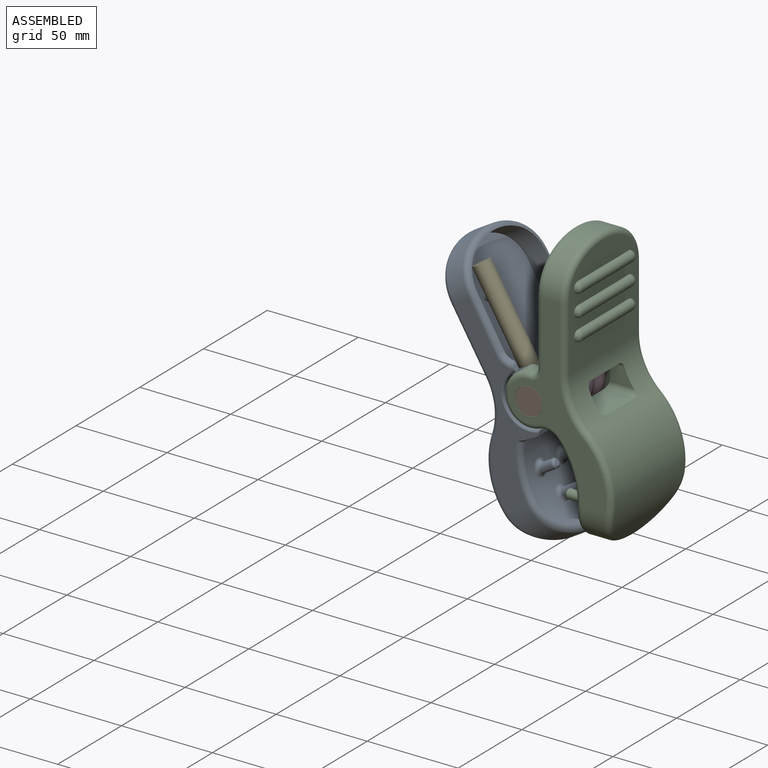
[diagram: assembled view]
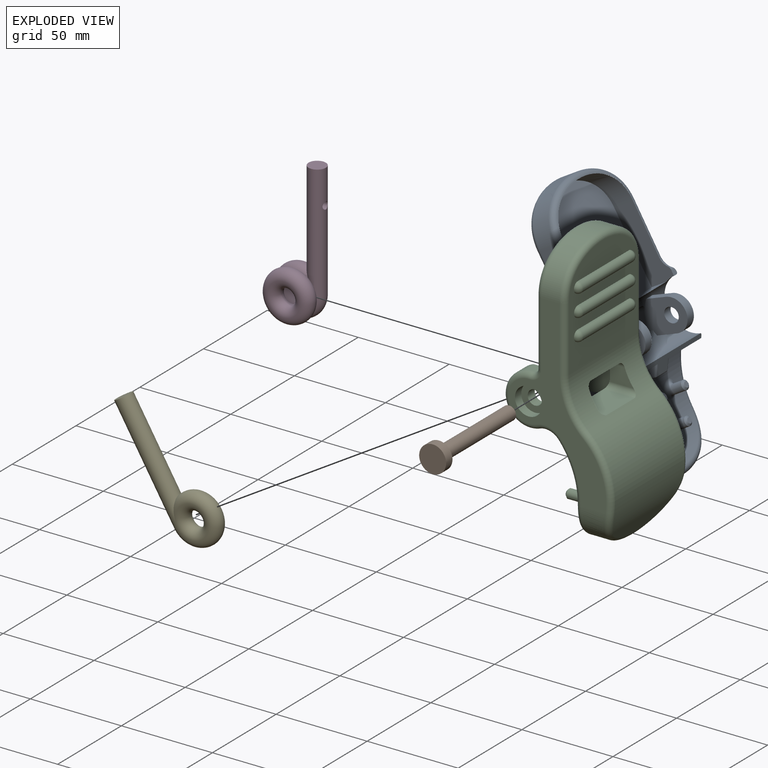
[diagram: exploded view]
GUIDED TOUR — FREECAD ASSEMBLY "Arrietty's clip"

This assembly has 5 components, labeled P0..P4 below (a component is one placed body or linked part; the same part can appear more than once), held together by 4 modeled joints. A joint is a constraint between two components; its type names the relative motion it leaves free:
  FASTENED — locks the two components together rigidly (no relative motion),
  REVOLUTE — leaves rotation about the listed axis free (a hinge).
Axis/direction vectors are unit vectors and 'through' points are millimeter coordinates, both in the assembly's world frame.

MATES
  1. FASTENED [Fixed] "Joint": P1 <-> P2, direction (0.000, 1.000, 0.000) through (18.70, 0.00, 0.75) mm
  2. FASTENED [Fixed] "Joint002": P3 <-> P2, direction (-1.000, 0.000, 0.000) through (28.00, 39.00, 46.00) mm
  3. REVOLUTE [Revolute] "Joint003": P2 <-> P0, axis (0.000, -1.000, 0.000) through (18.70, 49.50, 0.75) mm
  4. FASTENED [Fixed] "Joint004": P4 <-> P0, direction (0.856, 0.000, 0.517) through (-14.23, 21.30, 37.36) mm

ASSEMBLY ORDER
  1. P2 — the base component [order heuristic]
  2. P0 [order heuristic]
  3. P1 [order heuristic]
  4. P3 [order heuristic]
  5. P4 [order heuristic]
Order-tag legend:
  [order heuristic] — this assembly is geometrically interlocked (no collision-free removal order exists), so components are listed in mate-graph order; insertion feasibility is not verified.

Of the 5 components, 5 carry a construction recipe — the FreeCAD feature program (sketches with constraints, then the solid features that consume them) that regenerates the part from scratch, quoted from this document or from the linked companion document it references; the rest are supplied as boundary geometry only. The tour below walks the components in assembly order: each is shown spotlighted twice — in the assembled view, then in the exploded view, where a leader line traces a displaced component back to its assembled socket (components that stay in place when exploded have no leader line; saturated green if recipe-attached, orange if geometry-only; every other component desaturated gray) — followed by its recipe or geometry summary and the mates that hold it.
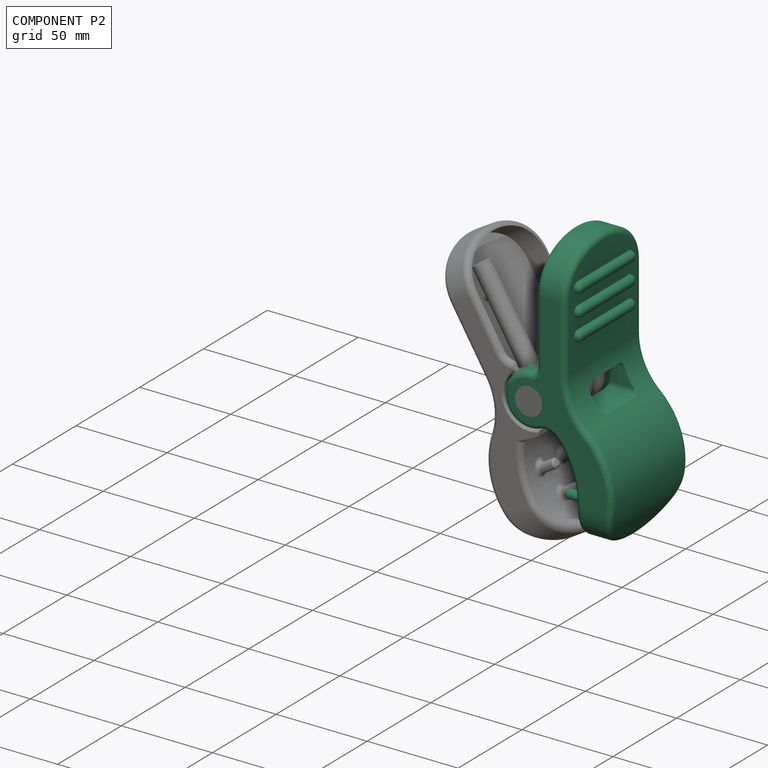
[diagram: component P2 — assembled]
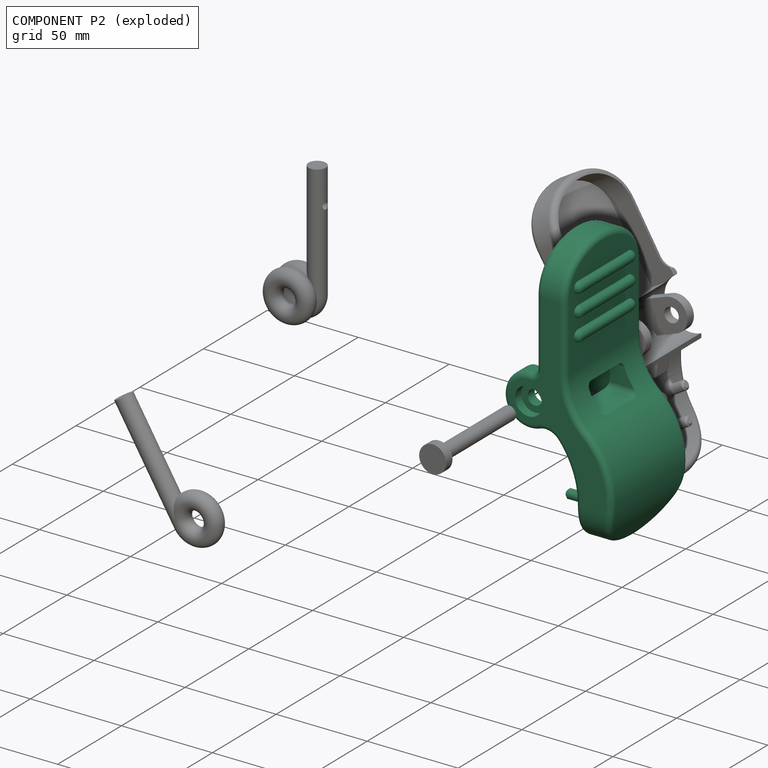
[diagram: component P2 — exploded]
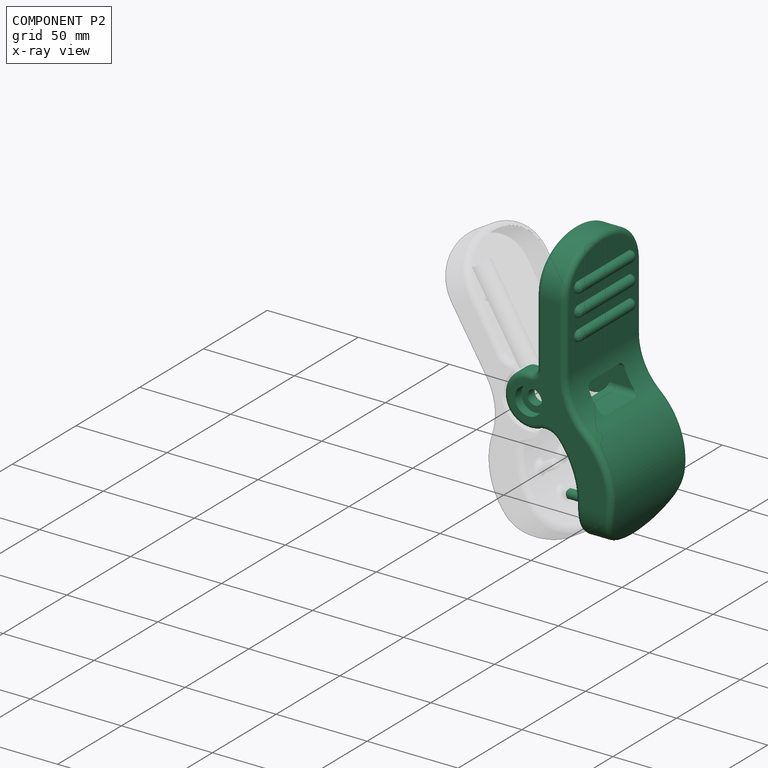
[diagram: component P2 — x-ray view]
COMPONENT P2 — recipe-attached ("Right001", modeled in this document).
Held by: FASTENED mate "Joint" to P1; FASTENED mate "Joint002" to P3; REVOLUTE mate "Joint003" to P0.
Construction recipe (the document's own serialized feature program — sketch geometry with constraints, then the solid features built on it; lengths are millimeters unless a unit is written):

FEATURE [Part::Part2DObjectPython] Clone2D  label="Sketch (2D)"  # Draft 2D object (typed FeaturePython)
  Fuse = false
  Objects = -> [Sketch]
  Placement = pos=(1,0,0) rot=(1,0,0;1.5708rad)
  Scale = (-1,1,1)
FEATURE [PartDesign::SubShapeBinder] Binder
  BindCopyOnChange = 0
  BindMode = 0
  ClaimChildren = false
  Context = -> Body001 [Binder.]
  Fuse = false
  MakeFace = true
  OffsetFill = false
  OffsetIntersection = false
  OffsetJoinType = 0
  OffsetOpenResult = false
  PartialLoad = false
  Relative = true
  Support = -> [Body[Fillet002.,Fillet002.]]
  _Version = 2
FEATURE [Sketcher::SketchObject] Sketch008
  ArcFitTolerance = 1e-06
  AttachmentSupport = -> [XZ_Plane001]
  ExternalGeometry = -> [Binder]
  FullyConstrained = true
  MakeInternals = false
  MapMode = 5
  Placement = pos=(0,0,0) rot=(1,0,0;1.5708rad)
  sketch-geometry (13):
    g0: LineSegment StartX=22.7329 StartY=78.0947 StartZ=0 EndX=38.7259 EndY=78.0947 EndZ=0
    g1: LineSegment StartX=38.7259 StartY=78.0947 StartZ=0 EndX=38.7259 EndY=17.9123 EndZ=0
    g2: LineSegment StartX=41.7715 StartY=-59.0139 StartZ=0 EndX=38.7302 EndY=-67.7055 EndZ=0
    g3: LineSegment StartX=38.7302 StartY=-67.7055 StartZ=0 EndX=54.7528 EndY=-67.7055 EndZ=0
    g4: LineSegment StartX=54.7528 StartY=-67.7055 StartZ=0 EndX=60.1416 EndY=-56.5224 EndZ=0
    g5: LineSegment StartX=22.7329 StartY=78.0947 StartZ=0 EndX=22.7329 EndY=17.7186 EndZ=0
    g6: Circle CenterX=18.7 CenterY=0.75 CenterZ=0 NormalX=0 NormalY=0 NormalZ=1 AngleXU=0 Radius=4
    g7: ArcOfCircle CenterX=18.7 CenterY=0.75 CenterZ=0 NormalX=0 NormalY=0 NormalZ=1 AngleXU=0 Radius=14 StartAngle=1.51 EndAngle=5.07421
    g8: ArcOfCircle CenterX=72.5263 CenterY=17.9123 CenterZ=0 NormalX=0 NormalY=0 NormalZ=1 AngleXU=0 Radius=33.8004 StartAngle=3.14159 EndAngle=3.99067
    g9: ArcOfCircle CenterX=22.8368 CenterY=-38.5462 CenterZ=0 NormalX=0 NormalY=0 NormalZ=1 AngleXU=0 Radius=41.41 StartAngle=5.83414 EndAngle=7.13227
    g10: ArcOfCircle CenterX=-1.34602 CenterY=-43.9263 CenterZ=0 NormalX=0 NormalY=0 NormalZ=1 AngleXU=0 Radius=45.6811 StartAngle=5.94658 EndAngle=6.96364
    g11: ArcOfCircle CenterX=26.9429 CenterY=-21.0289 CenterZ=0 NormalX=0 NormalY=0 NormalZ=1 AngleXU=0 Radius=9.28663 StartAngle=0.680452 EndAngle=1.93262
    g12: ArcOfCircle CenterX=19.7329 CenterY=17.7186 CenterZ=0 NormalX=0 NormalY=0 NormalZ=1 AngleXU=0 Radius=3 StartAngle=4.65159 EndAngle=6.28319
  constraints (27):
    c: Coincident(g0,g1)
    c: Coincident(g2,g3)
    c: Coincident(g3,g4)
    c: Coincident(g5,g0)
    c: Vertical(g5)
    c: Coincident(g7,g6)
    c: Coincident(g8,g1)
    c: Horizontal(g1,g8)
    c: Coincident(g9,g8)
    c: Tangent(g9,g4) = -1.5708
    c: Tangent(g10,g2) = 1.5708
    c: Tangent(g11,g7) = 1.5708
    c: Tangent(g11,g10) = -1.5708
    c: Coincident(g12,g5)
    c: Tangent(g12,g7) = 1.5708
    c: Horizontal(g12,g5)
    c: Block(g10)
    c: Block(g2)
    c: Block(g4)
    c: Block(g9)
    c: Block(g8)
    c: Block(g1)
    c: Block(g0)
    c: Radius(g7) = 14
    c: Equal(g-3,g6)
    c: Symmetric(g-4,g6,g-2)
    c: Radius(g12) = 3
FEATURE [PartDesign::Pad] Pad004
  Direction = (0,-1,2e-16)
  Length = 60
  Length2 = 10
  Placement = pos=(0,0,0) rot=(1,0,0;1.5708rad)
  Profile = -> Sketch008
  ReferenceAxis = -> Sketch008 [N_Axis]
  Reversed = true
  Suppressed = false
  Type = 0
FEATURE [Sketcher::SketchObject] Sketch009
  ArcFitTolerance = 1e-06
  AttachmentOffset = pos=(0,0,-10.5) rot=(0,0,1;0rad)
  AttachmentSupport = -> [XZ_Plane001]
  ExternalGeometry = -> [Pad004]
  FullyConstrained = true
  MakeInternals = false
  MapMode = 5
  Placement = pos=(0,10.5,-2.3e-15) rot=(1,0,0;1.5708rad)
  sketch-geometry (6):
    g0: ArcOfCircle CenterX=18.7 CenterY=0.75 CenterZ=0 NormalX=0 NormalY=0 NormalZ=1 AngleXU=0 Radius=14 StartAngle=1.5708 EndAngle=4.71239
    g1: LineSegment StartX=32.0154 StartY=-13.25 StartZ=0 EndX=18.7 EndY=-13.25 EndZ=0
    g2: ArcOfCircle CenterX=18.7 CenterY=0.75 CenterZ=0 NormalX=0 NormalY=0 NormalZ=1 AngleXU=0 Radius=14 StartAngle=5.61154 EndAngle=7.41531
    g3: LineSegment StartX=29.6591 StartY=-7.9619 StartZ=0 EndX=32.0154 EndY=-13.25 EndZ=0
    g4: LineSegment StartX=22.7329 StartY=17.7186 StartZ=0 EndX=24.6463 EndY=13.4244 EndZ=0
    g5: LineSegment StartX=18.7 StartY=14.75 StartZ=0 EndX=22.7329 EndY=17.7186 EndZ=0
  constraints (17):
    c: Coincident(g0,g-3)
    c: PointOnObject(g0,g-3)
    c: Vertical(g0,g0)
    c: Vertical(g0,g0)
    c: Coincident(g1,g0)
    c: Horizontal(g1)
    c: PointOnObject(g1,g-4)
    c: Coincident(g2,g0)
    c: Coincident(g3,g2)
    c: Coincident(g3,g1)
    c: PointOnObject(g-5,g3)
    c: Equal(g0,g2)
    c: Coincident(g4,g-5)
    c: Coincident(g4,g2)
    c: Parallel(g4,g3)
    c: Coincident(g5,g0)
    c: Coincident(g5,g4)
FEATURE [PartDesign::Pocket] Pocket004
  BaseFeature = -> Pad004
  Direction = (0,1,-2e-16)
  Length = 39
  Length2 = 5
  Placement = pos=(0,0,0) rot=(1,0,0;1.5708rad)
  Profile = -> Sketch009
  ReferenceAxis = -> Sketch009 [N_Axis]
  Refine = true
  Suppressed = false
  Type = 0
FEATURE [Part::Part2DObjectPython] Clone2D001  label="Sketch001 (2D)"  # Draft 2D object (typed FeaturePython)
  Fuse = false
  Objects = -> [Sketch001]
  Placement = pos=(0,0,0) rot=(0.57735,0.57735,0.57735;2.0944rad)
  Scale = (1,1,1)
FEATURE [PartDesign::Pocket] Pocket005
  BaseFeature = -> Pocket004
  Direction = (-1,-1e-16,1e-16)
  Length = 5
  Length2 = 5
  Placement = pos=(0,0,0) rot=(1,0,0;1.5708rad)
  Profile = -> Clone2D001
  ReferenceAxis = -> Clone2D001 [N_Axis]
  Reversed = true
  Suppressed = false
  Type = 1
FEATURE [PartDesign::Fillet] Fillet003
  Base = -> Pocket005 [Edge42,Edge39]
  BaseFeature = -> Pocket005
  Placement = pos=(0,0,0) rot=(1,0,0;1.5708rad)
  Radius = 3
  SupportTransform = false
  Suppressed = false
  UseAllEdges = false
FEATURE [Part::Part2DObjectPython] Clone2D002  label="Sketch004 (2D)"  # Draft 2D object (typed FeaturePython)
  Fuse = false
  Objects = -> [Sketch004]
  Placement = pos=(0,0,0) rot=(0.57735,0.57735,0.57735;2.0944rad)
  Scale = (1,1,1)
FEATURE [PartDesign::Pocket] Pocket006
  BaseFeature = -> Fillet003
  Direction = (-1,-1e-16,1e-16)
  Length = 5
  Length2 = 5
  Placement = pos=(0,0,0) rot=(1,0,0;1.5708rad)
  Profile = -> Clone2D002
  ReferenceAxis = -> Clone2D002 [N_Axis]
  Reversed = true
  Suppressed = false
  Type = 1
FEATURE [Part::Part2DObjectPython] Clone2D003  label="Sketch005 (2D)"  # Draft 2D object (typed FeaturePython)
  Fuse = false
  Objects = -> [Sketch005]
  Placement = pos=(38.72,0,0) rot=(0.707107,0,-0.707107;3.14159rad)
  Scale = (1,1,1)
FEATURE [Sketcher::SketchObject] Sketch010
  ArcFitTolerance = 1e-06
  AttachmentSupport = -> [Pocket006]
  ExternalGeometry = -> [Clone2D003]
  FullyConstrained = true
  MakeInternals = false
  MapMode = 5
  Placement = pos=(38.7259,0,9.1e-15) rot=(0.707107,0,0.707107;3.14159rad)
  sketch-geometry (12):
    g0: ArcOfCircle CenterX=35 CenterY=-50 CenterZ=0 NormalX=0 NormalY=0 NormalZ=1 AngleXU=0 Radius=3 StartAngle=3.14159 EndAngle=6.28319
    g1: ArcOfCircle CenterX=35 CenterY=-10 CenterZ=0 NormalX=0 NormalY=0 NormalZ=1 AngleXU=0 Radius=3 StartAngle=2.33e-14 EndAngle=3.14159
    g2: LineSegment StartX=32 StartY=-50 StartZ=0 EndX=32 EndY=-10 EndZ=0
    g3: LineSegment StartX=38 StartY=-50 StartZ=0 EndX=38 EndY=-10 EndZ=0
    g4: ArcOfCircle CenterX=47 CenterY=-50 CenterZ=0 NormalX=0 NormalY=0 NormalZ=1 AngleXU=0 Radius=3 StartAngle=3.14159 EndAngle=6.28319
    g5: ArcOfCircle CenterX=47 CenterY=-10 CenterZ=0 NormalX=0 NormalY=0 NormalZ=1 AngleXU=0 Radius=3 StartAngle=2.32e-14 EndAngle=3.14159
    g6: LineSegment StartX=44 StartY=-50 StartZ=0 EndX=44 EndY=-10 EndZ=0
    g7: LineSegment StartX=50 StartY=-50 StartZ=0 EndX=50 EndY=-10 EndZ=0
    g8: ArcOfCircle CenterX=59 CenterY=-50 CenterZ=0 NormalX=0 NormalY=0 NormalZ=1 AngleXU=0 Radius=3 StartAngle=3.14159 EndAngle=6.28319
    g9: ArcOfCircle CenterX=59 CenterY=-10 CenterZ=0 NormalX=0 NormalY=0 NormalZ=1 AngleXU=0 Radius=3 StartAngle=4.5189e-12 EndAngle=3.14159
    g10: LineSegment StartX=56 StartY=-50 StartZ=0 EndX=56 EndY=-10 EndZ=0
    g11: LineSegment StartX=62 StartY=-50 StartZ=0 EndX=62 EndY=-10 EndZ=0
  constraints (24):
    c: Tangent(g0,g2) = 1.5708
    c: Tangent(g0,g3) = -1.5708
    c: Tangent(g1,g2) = 1.5708
    c: Tangent(g1,g3) = -1.5708
    c: Equal(g0,g1)
    c: Vertical(g2)
    c: Tangent(g4,g6) = 1.5708
    c: Tangent(g4,g7) = -1.5708
    c: Tangent(g5,g6) = 1.5708
    c: Tangent(g5,g7) = -1.5708
    c: Equal(g4,g5)
    c: Vertical(g6)
    c: Tangent(g8,g10) = 1.5708
    c: Tangent(g8,g11) = -1.5708
    c: Tangent(g9,g10) = 1.5708
    c: Tangent(g9,g11) = -1.5708
    c: Equal(g8,g9)
    c: Vertical(g10)
    c: Coincident(g-4,g0)
    c: Coincident(g1,g-3)
    c: Coincident(g5,g-5)
    c: Coincident(g4,g-6)
    c: Coincident(g8,g-7)
    c: Coincident(g9,g-8)
FEATURE [PartDesign::Pad] Pad005
  BaseFeature = -> Pocket006
  Direction = (1,0,-2e-16)
  Length = 3.01
  Length2 = 10
  Placement = pos=(0,0,0) rot=(1,0,0;1.5708rad)
  Profile = -> Sketch010
  ReferenceAxis = -> Sketch010 [N_Axis]
  Suppressed = false
  Type = 0
FEATURE [PartDesign::Fillet] Fillet005
  Base = -> Pad005 [Edge156,Edge164,Edge172]
  BaseFeature = -> Pad005
  Placement = pos=(0,0,0) rot=(1,0,0;1.5708rad)
  Radius = 3
  SupportTransform = false
  Suppressed = false
  UseAllEdges = false
FEATURE [Part::Part2DObjectPython] Clone2D004  label="Sketch006 (2D)"  # Draft 2D object (typed FeaturePython)
  Fuse = false
  Objects = -> [Sketch006]
  Placement = pos=(0,0,0) rot=(0.57735,0.57735,0.57735;2.0944rad)
  Scale = (1,1,1)
FEATURE [PartDesign::Pocket] Pocket007
  BaseFeature = -> Fillet005
  Direction = (-1,-1e-16,1e-16)
  Length = 34
  Length2 = 5
  Placement = pos=(0,0,0) rot=(1,0,0;1.5708rad)
  Profile = -> Clone2D004
  ReferenceAxis = -> Clone2D004 [N_Axis]
  Refine = true
  Reversed = true
  Suppressed = false
  Type = 0
FEATURE [Part::Part2DObjectPython] Clone2D005  label="Sketch007 (2D)"  # Draft 2D object (typed FeaturePython)
  Fuse = false
  Objects = -> [Sketch007]
  Placement = pos=(31,0,-78) rot=(0.57735,0.57735,0.57735;2.0944rad)
  Scale = (1,-1,1)
FEATURE [PartDesign::Pad] Pad006
  BaseFeature = -> Pocket007
  Direction = (1,-1e-16,2e-16)
  Length = 10
  Length2 = 10
  Placement = pos=(0,0,0) rot=(1,0,0;1.5708rad)
  Profile = -> Clone2D005
  ReferenceAxis = -> Clone2D005 [N_Axis]
  Suppressed = false
  Type = 3
  UpToFace = -> Pocket007 [Face75]
FEATURE [PartDesign::Chamfer] Chamfer001
  Angle = 45
  Base = -> Pad006 [Edge213,Edge217,Edge219,Edge221,Edge215]
  BaseFeature = -> Pad006
  ChamferType = 0
  FlipDirection = false
  Placement = pos=(0,0,0) rot=(1,0,0;1.5708rad)
  Size = 1
  Size2 = 1
  SupportTransform = false
  Suppressed = false
  UseAllEdges = false
FEATURE [PartDesign::Fillet] Fillet006
  Base = -> Chamfer001 [Edge3,Edge12,Edge13,Edge15,Edge14]
  BaseFeature = -> Chamfer001
  Placement = pos=(0,0,0) rot=(1,0,0;1.5708rad)
  Radius = 2
  SupportTransform = false
  Suppressed = false
  UseAllEdges = false
FEATURE [Sketcher::SketchObject] Sketch011
  ArcFitTolerance = 1e-06
  AttachmentSupport = -> [Fillet006]
  ExternalGeometry = -> [Fillet006]
  FullyConstrained = true
  MakeInternals = false
  MapMode = 5
  Placement = pos=(0,8e-16,0) rot=(1,0,0;1.5708rad)
  sketch-geometry (1):
    g0: Circle CenterX=18.7 CenterY=0.75 CenterZ=0 NormalX=0 NormalY=0 NormalZ=1 AngleXU=0 Radius=7.5
  constraints (2):
    c: Diameter(g0) = 15
    c: Coincident(g0,g-3)
FEATURE [PartDesign::Pocket] Pocket008
  BaseFeature = -> Fillet006
  Direction = (0,1,-2e-16)
  Length = 5
  Length2 = 5
  Placement = pos=(0,0,0) rot=(1,0,0;1.5708rad)
  Profile = -> Sketch011
  ReferenceAxis = -> Sketch011 [N_Axis]
  Suppressed = false
  Type = 0
FEATURE [Sketcher::SketchObject] Sketch015
  ArcFitTolerance = 1e-06
  AttachmentOffset = pos=(0,0,-30) rot=(0,0,1;0rad)
  AttachmentSupport = -> [XZ_Plane001]
  ExternalGeometry = -> [Pocket008]
  FullyConstrained = true
  MakeInternals = false
  MapMode = 5
  Placement = pos=(0,30,-6.7e-15) rot=(1,0,0;1.5708rad)
  sketch-geometry (7):
    g0: LineSegment StartX=29.8322 StartY=-21.0422 StartZ=0 EndX=30.5809 EndY=-21.0422 EndZ=0
    g1: ArcOfCircle CenterX=29.8322 CenterY=-16.1232 CenterZ=0 NormalX=0 NormalY=0 NormalZ=1 AngleXU=0 Radius=2 StartAngle=1.5708 EndAngle=4.92796
    g2: ArcOfCircle CenterX=30.5809 CenterY=-19.5422 CenterZ=0 NormalX=0 NormalY=0 NormalZ=1 AngleXU=0 Radius=1.5 StartAngle=4.71239 EndAngle=8.06956
    g3: LineSegment StartX=32.9335 StartY=-9.71874 StartZ=0 EndX=33.152 EndY=-14.1232 EndZ=0
    g4: ArcOfCircle CenterX=29.8322 CenterY=-16.1232 CenterZ=0 NormalX=0 NormalY=0 NormalZ=1 AngleXU=0 Radius=4.91899 StartAngle=1.92738 EndAngle=4.71239
    g5: LineSegment StartX=29.8322 StartY=-14.1232 StartZ=0 EndX=33.152 EndY=-14.1232 EndZ=0
    g6: LineSegment StartX=28.1151 StartY=-11.5137 StartZ=0 EndX=32.9335 EndY=-9.71874 EndZ=0
  constraints (19):
    c: Horizontal(g0)
    c: Radius(g1) = 2
    c: Coincident(g2,g0)
    c: Vertical(g2,g0)
    c: Radius(g2) = 1.5
    c: Vertical(g1,g1)
    c: Tangent(g2,g1) = 1.5708
    c: Coincident(g4,g1)
    c: Coincident(g4,g0)
    c: Vertical(g1,g0)
    c: Coincident(g5,g1)
    c: Horizontal(g5)
    c: Coincident(g3,g5)
    c: Coincident(g6,g3)
    c: Tangent(g6,g4) = 1.5708
    c: PointOnObject(g3,g-4)
    c: Block(g0)
    c: Block(g5)
    c: Block(g6)
FEATURE [PartDesign::Pad] Pad010
  BaseFeature = -> Pocket008
  Direction = (0,-1,2e-16)
  Length = 10
  Length2 = 10
  Midplane = true
  Placement = pos=(0,0,0) rot=(1,0,0;1.5708rad)
  Profile = -> Sketch015
  ReferenceAxis = -> Sketch015 [N_Axis]
  Suppressed = false
  Type = 0
FEATURE [PartDesign::Fillet] Fillet008
  Base = -> Pad010 [Edge70,Edge62]
  BaseFeature = -> Pad010
  Placement = pos=(0,0,0) rot=(1,0,0;1.5708rad)
  Radius = 0.85
  SupportTransform = false
  Suppressed = false
  UseAllEdges = false
FEATURE [Sketcher::SketchObject] Sketch016
  ArcFitTolerance = 1e-06
  AttachmentSupport = -> [Fillet008]
  ExternalGeometry = -> [Fillet008]
  FullyConstrained = true
  MakeInternals = false
  MapMode = 5
  Placement = pos=(1.6e-15,-3.1e-15,14) rot=(0,0,1;3.14159rad)
  sketch-geometry (4):
    g0: LineSegment StartX=-27.8899 StartY=-34.25 StartZ=0 EndX=-24.3899 EndY=-34.25 EndZ=0
    g1: LineSegment StartX=-24.3899 StartY=-34.25 StartZ=0 EndX=-24.3899 EndY=-43.75 EndZ=0
    g2: LineSegment StartX=-24.3899 StartY=-43.75 StartZ=0 EndX=-27.8899 EndY=-43.75 EndZ=0
    g3: ArcOfCircle CenterX=-27.8899 CenterY=-39 CenterZ=0 NormalX=0 NormalY=0 NormalZ=1 AngleXU=0 Radius=4.75 StartAngle=1.5708 EndAngle=4.71239
  constraints (13):
    c: PointOnObject(g0,g-3)
    c: Horizontal(g0)
    c: Coincident(g0,g1)
    c: PointOnObject(g1,g-3)
    c: Coincident(g1,g2)
    c: Horizontal(g2)
    c: Vertical(g0,g2)
    c: Coincident(g3,g0)
    c: Coincident(g3,g2)
    c: Vertical(g3,g0)
    c: Radius(g3) = 4.75
    c: DistanceX(g2,g2) = 3.5
    c: DistanceY(g-3,g1) = 5.75
FEATURE [PartDesign::Pocket] Pocket009
  BaseFeature = -> Fillet008
  Direction = (0,0,-1)
  Length = 13
  Length2 = 5
  Placement = pos=(0,0,0) rot=(1,0,0;1.5708rad)
  Profile = -> Sketch016
  ReferenceAxis = -> Sketch016 [N_Axis]
  Suppressed = false
  Type = 0
FEATURE [Sketcher::SketchObject] Sketch017
  ArcFitTolerance = 1e-06
  AttachmentSupport = -> [Pocket009]
  ExternalGeometry = -> [Pocket009]
  FullyConstrained = true
  MakeInternals = false
  MapMode = 5
  Placement = pos=(34,1.51e-14,0) rot=(0.707107,0,-0.707107;3.14159rad)
  sketch-geometry (2):
    g0: Circle CenterX=-46 CenterY=-39 CenterZ=0 NormalX=0 NormalY=0 NormalZ=1 AngleXU=0 Radius=2
    g1: LineSegment [constr] StartX=-14 StartY=-39 StartZ=0 EndX=-46 EndY=-39 EndZ=0
  constraints (5):
    c: Symmetric(g-3,g-3,g1)
    c: Coincident(g1,g0)
    c: Horizontal(g1)
    c: Diameter(g0) = 4
    c: DistanceX(g1,g1) = 32
FEATURE [PartDesign::Pad] Pad011
  BaseFeature = -> Pocket009
  Direction = (-1,0,-2e-16)
  Length = 6
  Length2 = 10
  Placement = pos=(0,0,0) rot=(1,0,0;1.5708rad)
  Profile = -> Sketch017
  ReferenceAxis = -> Sketch017 [N_Axis]
  Suppressed = false
  Type = 0
FEATURE [PartDesign::Chamfer] Chamfer002
  Angle = 45
  Base = -> Pad011 [Edge234]
  BaseFeature = -> Pad011
  ChamferType = 0
  FlipDirection = false
  Placement = pos=(0,0,0) rot=(1,0,0;1.5708rad)
  Size = 1
  Size2 = 1
  SupportTransform = false
  Suppressed = false
  UseAllEdges = false
FEATURE [PartDesign::Body] Body001  label="Right"
  AllowCompound = false
  Group = -> [Sketch008,Clone2D,Binder,Pad004,Sketch009,Pocket004,Clone2D001,Pocket005,Fillet003,Clone2D002,Pocket006,Clone2D003,Sketch010,Pad005,Fillet005,Clone2D004,Pocket007,Clone2D005,Pad006,Chamfer001,Fillet006,Sketch011,Pocket008,Sketch015,Pad010,Fillet008,Sketch016,Pocket009,Sketch017,Pad011,Chamfer002]
  Origin = -> Origin001
  Tip = -> Chamfer002
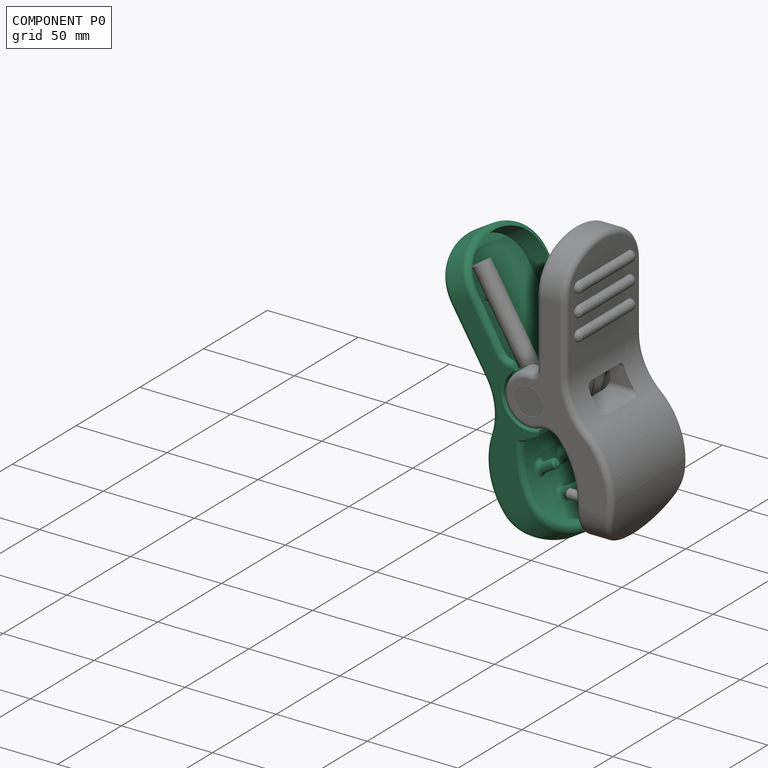
[diagram: component P0 — assembled]
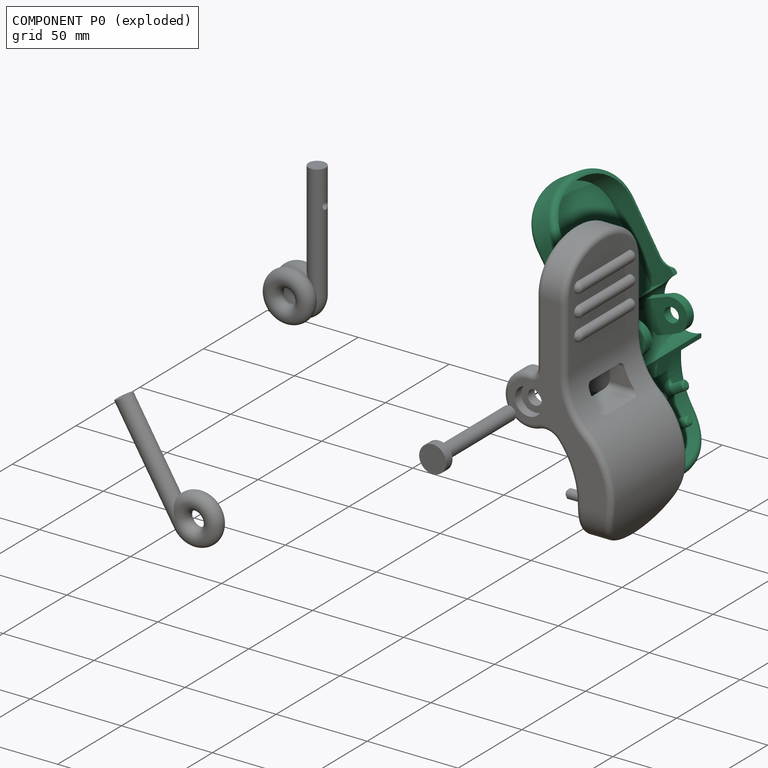
[diagram: component P0 — exploded]
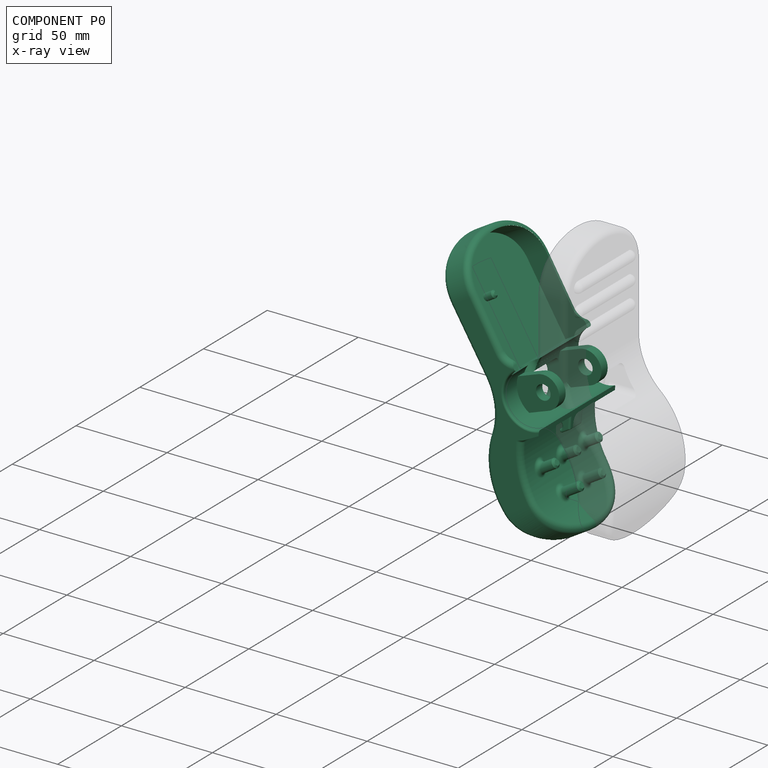
[diagram: component P0 — x-ray view]
COMPONENT P0 — recipe-attached ("Left001", modeled in this document).
Held by: REVOLUTE mate "Joint003" to P2; FASTENED mate "Joint004" to P4.
Construction recipe (the document's own serialized feature program — sketch geometry with constraints, then the solid features built on it; lengths are millimeters unless a unit is written):

FEATURE [Sketcher::SketchObject] Sketch
  ArcFitTolerance = 1e-06
  AttachmentSupport = -> [XZ_Plane]
  FullyConstrained = true
  MakeInternals = false
  MapMode = 5
  Placement = pos=(0,0,0) rot=(1,0,0;1.5708rad)
  sketch-geometry (14):
    g0: ArcOfCircle CenterX=-15.0954 CenterY=25.6039 CenterZ=0 NormalX=0 NormalY=0 NormalZ=1 AngleXU=0 Radius=7.16229 StartAngle=3.13159 EndAngle=4.16755
    g1: LineSegment StartX=-21.7329 StartY=78.0947 StartZ=0 EndX=-22.2573 EndY=25.6755 EndZ=0
    g2: LineSegment StartX=-18.8075 StartY=19.4786 StartZ=0 EndX=-19.0212 EndY=15.2718 EndZ=0
    g3: ArcOfCircle CenterX=-18.7 CenterY=0.75 CenterZ=0 NormalX=0 NormalY=0 NormalZ=1 AngleXU=0 Radius=14.5253 StartAngle=1.59291 EndAngle=4.5442
    g4: LineSegment StartX=-21.1314 StartY=-13.5704 StartZ=0 EndX=-22.7095 EndY=-15.8003 EndZ=0
    g5: LineSegment StartX=-22.7095 StartY=-15.8003 StartZ=0 EndX=-33.1613 EndY=-15.1863 EndZ=0
    g6: ArcOfCircle CenterX=2.34602 CenterY=-43.9263 CenterZ=0 NormalX=0 NormalY=0 NormalZ=1 AngleXU=0 Radius=45.6811 StartAngle=2.46114 EndAngle=3.4782
    g7: LineSegment StartX=-37.7302 StartY=-67.7055 StartZ=0 EndX=-53.7528 EndY=-67.7055 EndZ=0
    g8: ArcOfCircle CenterX=-21.8368 CenterY=-38.5462 CenterZ=0 NormalX=0 NormalY=0 NormalZ=1 AngleXU=0 Radius=41.41 StartAngle=2.29251 EndAngle=3.59063
    g9: ArcOfCircle CenterX=-71.5263 CenterY=17.9123 CenterZ=0 NormalX=0 NormalY=0 NormalZ=1 AngleXU=0 Radius=33.8004 StartAngle=5.4341 EndAngle=6.28319
    g10: LineSegment StartX=-37.7259 StartY=78.0947 StartZ=0 EndX=-37.7259 EndY=17.9123 EndZ=0
    g11: LineSegment StartX=-37.7259 StartY=78.0947 StartZ=0 EndX=-21.7329 EndY=78.0947 EndZ=0
    g12: LineSegment StartX=-59.1416 StartY=-56.5224 StartZ=0 EndX=-53.7528 EndY=-67.7055 EndZ=0
    g13: LineSegment StartX=-40.7715 StartY=-59.0139 StartZ=0 EndX=-37.7302 EndY=-67.7055 EndZ=0
  constraints (30):
    c: Tangent(g1,g0) = -1.5708
    c: Coincident(g2,g0)
    c: Coincident(g5,g4)
    c: Coincident(g6,g5)
    c: Block(g5)
    c: Block(g4)
    c: Horizontal(g9,g9)
    c: Coincident(g10,g9)
    c: Vertical(g10)
    c: Horizontal(g10,g1)
    c: Coincident(g11,g10)
    c: Coincident(g11,g1)
    c: Block(g6)
    c: Block(g8)
    c: Block(g10)
    c: Block(g11)
    c: Block(g1)
    c: Block(g9)
    c: Block(g0)
    c: Tangent(g13,g6) = -1.5708
    c: Tangent(g12,g8) = -1.5708
    c: Coincident(g7,g12)
    c: Coincident(g7,g13)
    c: Coincident(g3,g4)
    c: DistanceX(g3,g-1) = 18.7
    c: DistanceY(g-1,g3) = 0.75
    c: Coincident(g2,g3)
    c: Block(g2)
    c: Block(g13)
    c: Block(g12)
FEATURE [PartDesign::Pad] Pad
  Direction = (0,-1,2e-16)
  Length = 60
  Length2 = 10
  Placement = pos=(0,0,0) rot=(1,0,0;1.5708rad)
  Profile = -> Sketch
  ReferenceAxis = -> Sketch [N_Axis]
  Reversed = true
  Suppressed = false
  Type = 0
FEATURE [Sketcher::SketchObject] Sketch001
  ArcFitTolerance = 1e-06
  AttachmentSupport = -> [YZ_Plane]
  FullyConstrained = false
  MakeInternals = false
  MapMode = 5
  Placement = pos=(0,0,0) rot=(0.57735,0.57735,0.57735;2.0944rad)
  sketch-geometry (24):
    g0: LineSegment [constr] StartX=1.73e-14 StartY=78.0706 StartZ=0 EndX=60 EndY=78.0706 EndZ=0
    g1: LineSegment [constr] StartX=30 StartY=-67.3361 StartZ=0 EndX=30 EndY=78.0706 EndZ=0
    g2: LineSegment StartX=0 StartY=53.8871 StartZ=0 EndX=0 EndY=81.7471 EndZ=0
    g3: LineSegment StartX=0 StartY=81.7471 StartZ=0 EndX=60 EndY=81.7471 EndZ=0
    g4: LineSegment StartX=60 StartY=81.7471 StartZ=0 EndX=60 EndY=53.8871 EndZ=0
    g5: GeomPoint [constr] X=0 Y=53.8871 Z=0
    g6: GeomPoint [constr] X=30 Y=78.0706 Z=0
    g7: GeomPoint [constr] X=60 Y=53.8871 Z=0
    g8: BSplineCurve PolesCount=4 KnotsCount=2 Degree=3 IsPeriodic=0
    g9-g12: Circle [constr] x4 (B-spline internal-alignment scaffolding for g8; pole/knot coordinates omitted)
    g13: GeomPoint [constr] X=0 Y=-43.3361 Z=0
    g14: GeomPoint [constr] X=30 Y=-67.3361 Z=0
    g15: GeomPoint [constr] X=60 Y=-43.3361 Z=0
    g16: BSplineCurve PolesCount=4 KnotsCount=2 Degree=3 IsPeriodic=0
    g17-g20: Circle [constr] x4 (B-spline internal-alignment scaffolding for g16; pole/knot coordinates omitted)
    g21: LineSegment StartX=0 StartY=-43.3361 StartZ=0 EndX=0 EndY=-75.3361 EndZ=0
    g22: LineSegment StartX=0 StartY=-75.3361 StartZ=0 EndX=60 EndY=-75.3361 EndZ=0
    g23: LineSegment StartX=60 StartY=-75.3361 StartZ=0 EndX=60 EndY=-43.3361 EndZ=0
  constraints (53):
    c: Coincident(g0,g-5)
    c: Coincident(g0,g-4)
    c: Symmetric(g-3,g-3,g1)
    c: Coincident(g2,g3)
    c: Horizontal(g3)
    c: Coincident(g3,g4)
    c: Vertical(g4)
    c: Block(g3)
    c: Symmetric(g0,g0,g1)
    c: InternalAlignment(g5,g8)
    c: PointOnObject(g6,g8)
    c: InternalAlignment(g7,g8)
    c: InternalAlignment(g9,g8)
    c: Weight(g9) = 1
    c: InternalAlignment(g10,g8)
    c: Equal(g10,g9)
    c: InternalAlignment(g11,g8)
    c: Equal(g11,g9)
    c: InternalAlignment(g12,g8)
    c: Equal(g12,g9)
    c: PointOnObject(g5,g-2)
    c: Coincident(g6,g1)
    c: PointOnObject(g10,g-2)
    c: Vertical(g11,g3)
    c: Horizontal(g10,g11)
    c: Horizontal(g8,g8)
    c: Coincident(g4,g8)
    c: Coincident(g2,g8)
    c: InternalAlignment(g13,g16)
    c: PointOnObject(g14,g16)
    c: InternalAlignment(g15,g16)
    c: InternalAlignment(g17,g16)
    c: Weight(g17) = 1
    c: InternalAlignment(g18,g16)
    c: Equal(g18,g17)
    c: InternalAlignment(g19,g16)
    c: Equal(g19,g17)
    c: InternalAlignment(g20,g16)
    c: Equal(g20,g17)
    c: PointOnObject(g13,g-2)
    c: Coincident(g14,g1)
    c: Vertical(g-3,g16)
    c: Horizontal(g16,g16)
    c: Vertical(g18,g16)
    c: Vertical(g16,g19)
    c: Horizontal(g18,g19)
    c: DistanceY(g18,g1) = 8
    c: Coincident(g21,g16)
    c: Coincident(g21,g18)
    c: Coincident(g22,g18)
    c: Coincident(g22,g19)
    c: Coincident(g23,g19)
    c: Coincident(g23,g16)
FEATURE [PartDesign::Pocket] Pocket
  BaseFeature = -> Pad
  Direction = (-1,0,0)
  Length = 5
  Length2 = 5
  Placement = pos=(0,0,0) rot=(1,0,0;1.5708rad)
  Profile = -> Sketch001
  ReferenceAxis = -> Sketch001 [N_Axis]
  Suppressed = false
  Type = 1
FEATURE [Sketcher::SketchObject] Sketch002
  ArcFitTolerance = 1e-06
  AttachmentOffset = pos=(0,0,-11) rot=(0,0,1;0rad)
  AttachmentSupport = -> [XZ_Plane]
  FullyConstrained = true
  MakeInternals = false
  MapMode = 5
  Placement = pos=(0,11,-2.4e-15) rot=(1,0,0;1.5708rad)
  sketch-geometry (5):
    g0: LineSegment StartX=-17.0301 StartY=9.27607 StartZ=0 EndX=-33.7011 EndY=12.6048 EndZ=0
    g1: LineSegment StartX=-20.4804 StartY=-8.00383 StartZ=0 EndX=-37.1514 EndY=-4.67514 EndZ=0
    g2: LineSegment StartX=-33.7011 StartY=12.6048 StartZ=0 EndX=-37.1514 EndY=-4.67514 EndZ=0
    g3: ArcOfCircle CenterX=-18.7553 CenterY=0.636121 CenterZ=0 NormalX=0 NormalY=0 NormalZ=1 AngleXU=0 Radius=8.8105 StartAngle=4.51531 EndAngle=7.6569
    g4: Circle CenterX=-18.7553 CenterY=0.636121 CenterZ=0 NormalX=0 NormalY=0 NormalZ=1 AngleXU=0 Radius=4
  constraints (9):
    c: Coincident(g2,g0)
    c: Coincident(g2,g1)
    c: Block(g3)
    c: Tangent(g3,g0) = -1.5708
    c: Tangent(g3,g1) = 1.5708
    c: Perpendicular(g0,g2)
    c: Coincident(g4,g3)
    c: Diameter(g4) = 8
    c: Distance(g0,g0) = 17
FEATURE [PartDesign::Pad] Pad001  label="Hinge"
  BaseFeature = -> Pocket
  Direction = (0,-1,2e-16)
  Length = 38
  Length2 = 10
  Placement = pos=(0,0,0) rot=(1,0,0;1.5708rad)
  Profile = -> Sketch002
  ReferenceAxis = -> Sketch002 [N_Axis]
  Reversed = true
  Suppressed = false
  Type = 0
FEATURE [Sketcher::SketchObject] Sketch003
  ArcFitTolerance = 1e-06
  AttachmentOffset = pos=(0,0,-16) rot=(0,0,1;0rad)
  AttachmentSupport = -> [XZ_Plane]
  ExternalGeometry = -> [Pad001]
  FullyConstrained = false
  MakeInternals = false
  MapMode = 5
  Placement = pos=(0,16,-3.6e-15) rot=(1,0,0;1.5708rad)
  sketch-geometry (5):
    g0: ArcOfCircle CenterX=-18.7553 CenterY=0.636121 CenterZ=0 NormalX=0 NormalY=0 NormalZ=1 AngleXU=0 Radius=8.8105 StartAngle=4.51531 EndAngle=7.6569
    g1: LineSegment StartX=-17.0301 StartY=9.27607 StartZ=0 EndX=-28.3548 EndY=11.5373 EndZ=0
    g2: LineSegment StartX=-20.4804 StartY=-8.00383 StartZ=0 EndX=-31.8051 EndY=-5.74263 EndZ=0
    g3: ArcOfCircle CenterX=-18.7553 CenterY=0.636121 CenterZ=0 NormalX=0 NormalY=0 NormalZ=1 AngleXU=0 Radius=14.5253 StartAngle=2.29279 EndAngle=3.59624
    g4: LineSegment [constr] StartX=-18.7553 StartY=0.636121 StartZ=0 EndX=-24.8837 EndY=1.85978 EndZ=0
  constraints (11):
    c: Coincident(g0,g-3)
    c: Coincident(g0,g-3)
    c: Tangent(g1,g0) = -1.5708
    c: Tangent(g2,g0) = 1.5708
    c: Coincident(g3,g0)
    c: Coincident(g4,g0)
    c: Parallel(g4,g1)
    c: Symmetric(g0,g0,g0)
    c: Equal(g-4,g3)
    c: Coincident(g2,g3)
    c: Coincident(g3,g1)
FEATURE [PartDesign::Pocket] Pocket001  label="Hinge middle pocket"
  BaseFeature = -> Pad001
  Direction = (0,1,-2e-16)
  Length = 28
  Length2 = 5
  Placement = pos=(0,0,0) rot=(1,0,0;1.5708rad)
  Profile = -> Sketch003
  ReferenceAxis = -> Sketch003 [N_Axis]
  Refine = true
  Suppressed = false
  Type = 0
FEATURE [PartDesign::Fillet] Fillet
  Base = -> Pocket001 [Edge28,Edge33,Edge35,Edge37,Edge47]
  BaseFeature = -> Pocket001
  Placement = pos=(0,0,0) rot=(1,0,0;1.5708rad)
  Radius = 3
  SupportTransform = false
  Suppressed = false
  UseAllEdges = false
FEATURE [Sketcher::SketchObject] Sketch004
  ArcFitTolerance = 1e-06
  AttachmentSupport = -> [YZ_Plane]
  ExternalGeometry = -> [Pad]
  FullyConstrained = true
  MakeInternals = false
  MapMode = 5
  Placement = pos=(0,0,0) rot=(0.57735,0.57735,0.57735;2.0944rad)
  sketch-geometry (12):
    g0: LineSegment StartX=16 StartY=6.5 StartZ=0 EndX=16 EndY=-2.5 EndZ=0
    g1: LineSegment StartX=19 StartY=-5.5 StartZ=0 EndX=41 EndY=-5.5 EndZ=0
    g2: LineSegment StartX=44 StartY=-2.5 StartZ=0 EndX=44 EndY=6.5 EndZ=0
    g3: LineSegment StartX=41 StartY=9.5 StartZ=0 EndX=19 EndY=9.5 EndZ=0
    g4: ArcOfCircle CenterX=19 CenterY=6.5 CenterZ=0 NormalX=0 NormalY=0 NormalZ=1 AngleXU=0 Radius=3 StartAngle=1.5708 EndAngle=3.14159
    g5: ArcOfCircle CenterX=19 CenterY=-2.5 CenterZ=0 NormalX=0 NormalY=0 NormalZ=1 AngleXU=0 Radius=3 StartAngle=3.14159 EndAngle=4.71239
    g6: ArcOfCircle CenterX=41 CenterY=-2.5 CenterZ=0 NormalX=0 NormalY=0 NormalZ=1 AngleXU=0 Radius=3 StartAngle=4.71239 EndAngle=6.28319
    g7: ArcOfCircle CenterX=41 CenterY=6.5 CenterZ=0 NormalX=0 NormalY=0 NormalZ=1 AngleXU=0 Radius=3 StartAngle=0 EndAngle=1.5708
    g8: GeomPoint [constr] X=16 Y=9.5 Z=0
    g9: GeomPoint [constr] X=44 Y=-5.5 Z=0
    g10: GeomPoint [constr] X=60 Y=0 Z=0
    g11: LineSegment [constr] StartX=30 StartY=0 StartZ=0 EndX=30 EndY=9.5 EndZ=0
  constraints (28):
    c: Tangent(g0,g4) = -1.5708
    c: Tangent(g0,g5) = -1.5708
    c: Tangent(g1,g5) = -1.5708
    c: Tangent(g1,g6) = -1.5708
    c: Tangent(g2,g6) = -1.5708
    c: Tangent(g2,g7) = -1.5708
    c: Tangent(g3,g7) = -1.5708
    c: Tangent(g3,g4) = -1.5708
    c: Vertical(g0)
    c: Vertical(g2)
    c: Horizontal(g1)
    c: Horizontal(g3)
    c: Equal(g4,g5)
    c: Equal(g5,g6)
    c: Equal(g6,g7)
    c: PointOnObject(g8,g0)
    c: PointOnObject(g8,g3)
    c: PointOnObject(g9,g1)
    c: PointOnObject(g9,g2)
    c: Distance(g0,g2) = 28
    c: Distance(g1,g3) = 15
    c: Radius(g5) = 3
    c: PointOnObject(g10,g-3)
    c: PointOnObject(g10,g-1)
    c: PointOnObject(g11,g3)
    c: Symmetric(g-1,g10,g11)
    c: Symmetric(g5,g6,g11)
    c: DistanceY(g1,g11) = 5.5
FEATURE [PartDesign::Pocket] Pocket002
  BaseFeature = -> Fillet
  Direction = (-1,0,0)
  Length = 5
  Length2 = 5
  Placement = pos=(0,0,0) rot=(1,0,0;1.5708rad)
  Profile = -> Sketch004
  ReferenceAxis = -> Sketch004 [N_Axis]
  Refine = true
  Suppressed = false
  Type = 1
FEATURE [Sketcher::SketchObject] Sketch005
  ArcFitTolerance = 1e-06
  AttachmentSupport = -> [Pocket002]
  FullyConstrained = true
  MakeInternals = false
  MapMode = 5
  Placement = pos=(-37.7259,0,0) rot=(0.707107,0,-0.707107;3.14159rad)
  sketch-geometry (13):
    g0: LineSegment [constr] StartX=-28 StartY=-30 StartZ=0 EndX=-63 EndY=-30 EndZ=0
    g1: ArcOfCircle CenterX=-35 CenterY=-50 CenterZ=0 NormalX=0 NormalY=0 NormalZ=1 AngleXU=0 Radius=3 StartAngle=3.14159 EndAngle=6.28319
    g2: ArcOfCircle CenterX=-35 CenterY=-10 CenterZ=0 NormalX=0 NormalY=0 NormalZ=1 AngleXU=0 Radius=3 StartAngle=0 EndAngle=3.14159
    g3: LineSegment StartX=-38 StartY=-50 StartZ=0 EndX=-38 EndY=-10 EndZ=0
    g4: LineSegment StartX=-32 StartY=-50 StartZ=0 EndX=-32 EndY=-10 EndZ=0
    g5: ArcOfCircle CenterX=-47 CenterY=-50 CenterZ=0 NormalX=0 NormalY=0 NormalZ=1 AngleXU=0 Radius=3 StartAngle=3.14159 EndAngle=6.28319
    g6: ArcOfCircle CenterX=-47 CenterY=-10 CenterZ=0 NormalX=0 NormalY=0 NormalZ=1 AngleXU=0 Radius=3 StartAngle=0 EndAngle=3.14159
    g7: LineSegment StartX=-50 StartY=-50 StartZ=0 EndX=-50 EndY=-10 EndZ=0
    g8: LineSegment StartX=-44 StartY=-50 StartZ=0 EndX=-44 EndY=-10 EndZ=0
    g9: ArcOfCircle CenterX=-59 CenterY=-50 CenterZ=0 NormalX=0 NormalY=0 NormalZ=1 AngleXU=0 Radius=3 StartAngle=3.14159 EndAngle=6.28319
    g10: ArcOfCircle CenterX=-59 CenterY=-10 CenterZ=0 NormalX=0 NormalY=0 NormalZ=1 AngleXU=0 Radius=3 StartAngle=3e-16 EndAngle=3.14159
    g11: LineSegment StartX=-62 StartY=-50 StartZ=0 EndX=-62 EndY=-10 EndZ=0
    g12: LineSegment StartX=-56 StartY=-50 StartZ=0 EndX=-56 EndY=-10 EndZ=0
  constraints (31):
    c: Distance(g0) = 35
    c: Symmetric(g-3,g-3,g0)
    c: Horizontal(g0)
    c: Tangent(g1,g3) = 1.5708
    c: Tangent(g1,g4) = -1.5708
    c: Tangent(g2,g3) = 1.5708
    c: Tangent(g2,g4) = -1.5708
    c: Equal(g1,g2)
    c: Radius(g1) = 3
    c: Symmetric(g2,g1,g0)
    c: DistanceY(g1,g2) = 40
    c: Tangent(g5,g7) = 1.5708
    c: Tangent(g5,g8) = -1.5708
    c: Tangent(g6,g7) = 1.5708
    c: Tangent(g6,g8) = -1.5708
    c: Equal(g5,g6)
    c: Vertical(g7)
    c: Tangent(g9,g11) = 1.5708
    c: Tangent(g9,g12) = -1.5708
    c: Tangent(g10,g11) = 1.5708
    c: Tangent(g10,g12) = -1.5708
    c: Equal(g9,g10)
    c: Vertical(g11)
    c: Horizontal(g5,g1)
    c: Horizontal(g6,g2)
    c: Horizontal(g10,g6)
    c: Equal(g6,g2)
    c: Equal(g10,g2)
    c: Symmetric(g9,g1,g5)
    c: DistanceX(g1,g0) = 7
    c: DistanceX(g6,g2) = 12
FEATURE [PartDesign::Pad] Pad002  label="Bumps"
  BaseFeature = -> Pocket002
  Direction = (-1,0,-2e-16)
  Length = 3.01
  Length2 = 10
  Placement = pos=(0,0,0) rot=(1,0,0;1.5708rad)
  Profile = -> Sketch005
  ReferenceAxis = -> Sketch005 [N_Axis]
  Suppressed = false
  Type = 0
FEATURE [PartDesign::Fillet] Fillet001
  Base = -> Pad002 [Edge39,Edge55,Edge47]
  BaseFeature = -> Pad002
  Placement = pos=(0,0,0) rot=(1,0,0;1.5708rad)
  Radius = 3
  SupportTransform = false
  Suppressed = false
  UseAllEdges = false
FEATURE [Sketcher::SketchObject] Sketch006
  ArcFitTolerance = 1e-06
  AttachmentSupport = -> [YZ_Plane]
  ExternalGeometry = -> [Fillet001]
  FullyConstrained = true
  MakeInternals = false
  MapMode = 5
  Placement = pos=(0,0,0) rot=(0.57735,0.57735,0.57735;2.0944rad)
  sketch-geometry (12):
    g0: LineSegment StartX=3 StartY=53.8571 StartZ=0 EndX=3 EndY=14 EndZ=0
    g1: LineSegment StartX=57 StartY=53.8571 StartZ=0 EndX=57 EndY=14 EndZ=0
    g2: LineSegment StartX=3 StartY=14 StartZ=0 EndX=57 EndY=14 EndZ=0
    g3: GeomPoint [constr] X=3 Y=53.8571 Z=0
    g4: GeomPoint [constr] X=30 Y=75.0406 Z=0
    g5: GeomPoint [constr] X=57 Y=53.8571 Z=0
    g6: BSplineCurve PolesCount=4 KnotsCount=2 Degree=3 IsPeriodic=0
    g7-g10: Circle [constr] x4 (B-spline internal-alignment scaffolding for g6; pole/knot coordinates omitted)
    g11: LineSegment [constr] StartX=30 StartY=75.0406 StartZ=0 EndX=30 EndY=14 EndZ=0
  constraints (28):
    c: Coincident(g0,g-3)
    c: Vertical(g0)
    c: Coincident(g1,g-3)
    c: Vertical(g1)
    c: Coincident(g2,g0)
    c: Coincident(g2,g1)
    c: InternalAlignment(g3,g6)
    c: PointOnObject(g4,g6)
    c: InternalAlignment(g5,g6)
    c: InternalAlignment(g7,g6)
    c: Weight(g7) = 1
    c: InternalAlignment(g8,g6)
    c: Equal(g8,g7)
    c: InternalAlignment(g9,g6)
    c: Equal(g9,g7)
    c: InternalAlignment(g10,g6)
    c: Equal(g10,g7)
    c: Coincident(g3,g0)
    c: PointOnObject(g4,g-3)
    c: Coincident(g5,g1)
    c: PointOnObject(g9,g1)
    c: PointOnObject(g8,g0)
    c: Coincident(g11,g4)
    c: Symmetric(g2,g2,g11)
    c: Vertical(g11)
    c: Horizontal(g8,g9)
    c: Horizontal(g2)
    c: PointOnObject(g1,g-4)
FEATURE [PartDesign::Pocket] Pocket003
  BaseFeature = -> Fillet001
  Direction = (-1,0,0)
  Length = 34
  Length2 = 5
  Placement = pos=(0,0,0) rot=(1,0,0;1.5708rad)
  Profile = -> Sketch006
  ReferenceAxis = -> Sketch006 [N_Axis]
  Refine = true
  Suppressed = false
  Type = 0
FEATURE [Sketcher::SketchObject] Sketch007
  ArcFitTolerance = 1e-06
  AttachmentOffset = pos=(0,0,-31) rot=(0,0,1;0rad)
  AttachmentSupport = -> [YZ_Plane]
  ExternalGeometry = -> [Pocket003]
  FullyConstrained = true
  MakeInternals = false
  MapMode = 5
  Placement = pos=(-31,0,0) rot=(0.57735,0.57735,0.57735;2.0944rad)
  sketch-geometry (14):
    g0: Circle CenterX=21.5 CenterY=-46.2928 CenterZ=0 NormalX=0 NormalY=0 NormalZ=1 AngleXU=0 Radius=2.5
    g1: Circle CenterX=38.5 CenterY=-46.2928 CenterZ=0 NormalX=0 NormalY=0 NormalZ=1 AngleXU=0 Radius=2.5
    g2: Circle CenterX=30 CenterY=-31.5704 CenterZ=0 NormalX=0 NormalY=0 NormalZ=1 AngleXU=0 Radius=2.5
    g3: Circle CenterX=47 CenterY=-31.5704 CenterZ=0 NormalX=0 NormalY=0 NormalZ=1 AngleXU=0 Radius=2.5
    g4: Circle CenterX=13 CenterY=-31.5704 CenterZ=0 NormalX=0 NormalY=0 NormalZ=1 AngleXU=0 Radius=2.5
    g5: LineSegment [constr] StartX=13 StartY=-31.5704 StartZ=0 EndX=30 EndY=-31.5704 EndZ=0
    g6: LineSegment [constr] StartX=30 StartY=-31.5704 StartZ=0 EndX=47 EndY=-31.5704 EndZ=0
    g7: LineSegment [constr] StartX=13 StartY=-31.5704 StartZ=0 EndX=21.5 EndY=-46.2928 EndZ=0
    g8: LineSegment [constr] StartX=30 StartY=-31.5704 StartZ=0 EndX=21.5 EndY=-46.2928 EndZ=0
    g9: LineSegment [constr] StartX=30 StartY=-31.5704 StartZ=0 EndX=38.5 EndY=-46.2928 EndZ=0
    g10: LineSegment [constr] StartX=47 StartY=-31.5704 StartZ=0 EndX=38.5 EndY=-46.2928 EndZ=0
    g11: LineSegment [constr] StartX=38.5 StartY=-46.2928 StartZ=0 EndX=38.5 EndY=-31.5704 EndZ=0
    g12: LineSegment [constr] StartX=21.5 StartY=-46.2928 StartZ=0 EndX=21.5 EndY=-31.5704 EndZ=0
    g13: LineSegment [constr] StartX=30 StartY=-31.5704 StartZ=0 EndX=30 EndY=-13.5704 EndZ=0
  constraints (33):
    c: Diameter(g4) = 5
    c: Equal(g4,g2)
    c: Equal(g4,g3)
    c: Equal(g4,g0)
    c: Equal(g4,g1)
    c: Horizontal(g4,g2)
    c: Horizontal(g2,g3)
    c: Horizontal(g0,g1)
    c: Coincident(g5,g4)
    c: Coincident(g5,g2)
    c: Coincident(g6,g2)
    c: Coincident(g6,g3)
    c: Coincident(g7,g4)
    c: Coincident(g7,g0)
    c: Coincident(g8,g2)
    c: Coincident(g8,g0)
    c: Coincident(g9,g2)
    c: Coincident(g9,g1)
    c: Coincident(g10,g3)
    c: Coincident(g10,g1)
    c: Coincident(g11,g1)
    c: Vertical(g11)
    c: Symmetric(g2,g3,g11)
    c: Coincident(g12,g0)
    c: Symmetric(g5,g5,g12)
    c: Vertical(g12)
    c: Equal(g7,g5)
    c: Equal(g10,g5)
    c: DistanceX(g5,g5) = 17
    c: Coincident(g13,g2)
    c: Symmetric(g-3,g-3,g13)
    c: Vertical(g13)
    c: DistanceY(g13,g13) = 18
FEATURE [PartDesign::Pad] Pad003
  BaseFeature = -> Pocket003
  Direction = (1,0,0)
  Length = 10
  Length2 = 10
  Placement = pos=(0,0,0) rot=(1,0,0;1.5708rad)
  Profile = -> Sketch007
  ReferenceAxis = -> Sketch007 [N_Axis]
  Suppressed = false
  Type = 3
  UpToFace = -> Pocket003 [Face83]
FEATURE [PartDesign::Chamfer] Chamfer
  Angle = 45
  Base = -> Pad003 [Edge250,Edge248,Edge244,Edge252,Edge246]
  BaseFeature = -> Pad003
  ChamferType = 0
  FlipDirection = false
  Placement = pos=(0,0,0) rot=(1,0,0;1.5708rad)
  Size = 1
  Size2 = 1
  SupportTransform = false
  Suppressed = false
  UseAllEdges = false
FEATURE [PartDesign::Fillet] Fillet002
  Base = -> Chamfer [Edge14,Edge13,Edge3,Edge15,Edge12]
  BaseFeature = -> Chamfer
  Placement = pos=(0,0,0) rot=(1,0,0;1.5708rad)
  Radius = 2
  SupportTransform = false
  Suppressed = false
  UseAllEdges = false
FEATURE [PartDesign::Fillet] Fillet004
  Base = -> Fillet002 [Edge55,Edge67]
  BaseFeature = -> Fillet002
  Placement = pos=(0,0,0) rot=(1,0,0;1.5708rad)
  Radius = 1
  SupportTransform = false
  Suppressed = false
  UseAllEdges = false
FEATURE [Sketcher::SketchObject] Sketch014
  ArcFitTolerance = 1e-06
  AttachmentOffset = pos=(0,0,-30) rot=(0,0,1;0rad)
  AttachmentSupport = -> [XZ_Plane]
  ExternalGeometry = -> [Fillet004]
  FullyConstrained = false
  MakeInternals = false
  MapMode = 5
  Placement = pos=(0,30,-6.7e-15) rot=(1,0,0;1.5708rad)
  sketch-geometry (8):
    g0: LineSegment StartX=-22.7095 StartY=-15.8003 StartZ=0 EndX=-26.3038 EndY=-20.8792 EndZ=0
    g1: LineSegment StartX=-27.1201 StartY=-21.3015 StartZ=0 EndX=-31.5897 EndY=-21.3015 EndZ=0
    g2: ArcOfCircle CenterX=-31.5897 CenterY=-20.3015 CenterZ=0 NormalX=0 NormalY=0 NormalZ=1 AngleXU=0 Radius=1 StartAngle=1.5708 EndAngle=4.71239
    g3: ArcOfCircle CenterX=-31.5897 CenterY=-17.3015 CenterZ=0 NormalX=0 NormalY=0 NormalZ=1 AngleXU=0 Radius=2 StartAngle=4.71239 EndAngle=7.85189
    g4: ArcOfCircle CenterX=-27.1201 CenterY=-20.3015 CenterZ=0 NormalX=0 NormalY=0 NormalZ=1 AngleXU=0 Radius=1 StartAngle=4.71239 EndAngle=5.66732
    g5: LineSegment StartX=-31.5855 StartY=-15.3015 StartZ=0 EndX=-31.5855 EndY=-15.1015 EndZ=0
    g6: LineSegment StartX=-31.5855 StartY=-15.1015 StartZ=0 EndX=-22.215 EndY=-15.1015 EndZ=0
    g7: LineSegment StartX=-22.215 StartY=-15.1015 StartZ=0 EndX=-22.7095 EndY=-15.8003 EndZ=0
  constraints (20):
    c: Horizontal(g1)
    c: Tangent(g1,g2) = 1.5708
    c: Tangent(g2,g3) = 1.5708
    c: Vertical(g3,g-3)
    c: Vertical(g3,g2)
    c: Radius(g3) = 2
    c: PointOnObject(g0,g-4)
    c: Coincident(g4,g1)
    c: Vertical(g4,g1)
    c: Tangent(g4,g0) = 1.5708
    c: Radius(g4) = 1
    c: Radius(g2) = 1
    c: Distance(g5) = 0.2
    c: Coincident(g5,g3)
    c: Vertical(g5)
    c: Coincident(g6,g5)
    c: PointOnObject(g6,g-4)
    c: Horizontal(g6)
    c: Coincident(g7,g6)
    c: Coincident(g7,g0)
FEATURE [PartDesign::Pad] Pad009  label="Hook"
  BaseFeature = -> Fillet004
  Direction = (0,-1,2e-16)
  Length = 10
  Length2 = 10
  Midplane = true
  Placement = pos=(0,0,0) rot=(1,0,0;1.5708rad)
  Profile = -> Sketch014
  ReferenceAxis = -> Sketch014 [N_Axis]
  Refine = true
  Suppressed = false
  Type = 0
FEATURE [PartDesign::Fillet] Fillet007
  Base = -> Pad009 [Edge89,Edge81]
  BaseFeature = -> Pad009
  Placement = pos=(0,0,0) rot=(1,0,0;1.5708rad)
  Radius = 1
  SupportTransform = false
  Suppressed = false
  UseAllEdges = false
FEATURE [Sketcher::SketchObject] Sketch018
  ArcFitTolerance = 1e-06
  AttachmentSupport = -> [Fillet007]
  ExternalGeometry = -> [Fillet007]
  FullyConstrained = true
  MakeInternals = false
  MapMode = 5
  Placement = pos=(0,0,14) rot=(0,0,1;3.14159rad)
  sketch-geometry (4):
    g0: LineSegment StartX=24.6517 StartY=-16 StartZ=0 EndX=27.6017 EndY=-16 EndZ=0
    g1: LineSegment StartX=24.6517 StartY=-25.6 StartZ=0 EndX=27.6017 EndY=-25.6 EndZ=0
    g2: ArcOfCircle CenterX=27.6017 CenterY=-20.8 CenterZ=0 NormalX=0 NormalY=0 NormalZ=1 AngleXU=0 Radius=4.8 StartAngle=4.71239 EndAngle=7.85398
    g3: LineSegment StartX=24.6517 StartY=-16 StartZ=0 EndX=24.6517 EndY=-25.6 EndZ=0
  constraints (13):
    c: PointOnObject(g0,g-3)
    c: Horizontal(g0)
    c: PointOnObject(g1,g-3)
    c: Horizontal(g1)
    c: Vertical(g0,g1)
    c: Coincident(g2,g0)
    c: Coincident(g2,g1)
    c: Radius(g2) = 4.8
    c: PointOnObject(g0,g-4)
    c: Coincident(g3,g0)
    c: Coincident(g3,g1)
    c: DistanceX(g1,g1) = 2.95
    c: Vertical(g1,g2)
FEATURE [PartDesign::Pocket] Pocket011
  BaseFeature = -> Fillet007
  Direction = (0,0,-1)
  Length = 9
  Length2 = 5
  Placement = pos=(0,0,0) rot=(1,0,0;1.5708rad)
  Profile = -> Sketch018
  ReferenceAxis = -> Sketch018 [N_Axis]
  Refine = true
  Suppressed = false
  Type = 0
FEATURE [Sketcher::SketchObject] Sketch019
  ArcFitTolerance = 1e-06
  AttachmentSupport = -> [Pocket011]
  ExternalGeometry = -> [Pocket011]
  FullyConstrained = true
  MakeInternals = false
  MapMode = 5
  Placement = pos=(-34,0,0) rot=(0.707107,0,0.707107;3.14159rad)
  sketch-geometry (2):
    g0: Circle CenterX=49 CenterY=-20.8 CenterZ=0 NormalX=0 NormalY=0 NormalZ=1 AngleXU=0 Radius=2
    g1: LineSegment [constr] StartX=14 StartY=-20.8 StartZ=0 EndX=49 EndY=-20.8 EndZ=0
  constraints (5):
    c: Symmetric(g-3,g-3,g1)
    c: Coincident(g1,g0)
    c: Horizontal(g1)
    c: Diameter(g0) = 4
    c: DistanceX(g1,g1) = 35
FEATURE [PartDesign::Pad] Pad012
  BaseFeature = -> Pocket011
  Direction = (1,0,-2e-16)
  Length = 6
  Length2 = 10
  Placement = pos=(0,0,0) rot=(1,0,0;1.5708rad)
  Profile = -> Sketch019
  ReferenceAxis = -> Sketch019 [N_Axis]
  Suppressed = false
  Type = 0
FEATURE [PartDesign::Chamfer] Chamfer003
  Angle = 45
  Base = -> Pad012 [Edge313]
  BaseFeature = -> Pad012
  ChamferType = 0
  FlipDirection = false
  Placement = pos=(0,0,0) rot=(1,0,0;1.5708rad)
  Size = 1
  Size2 = 1
  SupportTransform = false
  Suppressed = false
  UseAllEdges = false
FEATURE [PartDesign::Body] Body  label="Left"
  AllowCompound = false
  Group = -> [Sketch,Pad,Sketch001,Pocket,Sketch002,Pad001,Sketch003,Pocket001,Fillet,Sketch004,Pocket002,Sketch005,Pad002,Fillet001,Sketch006,Pocket003,Sketch007,Pad003,Chamfer,Fillet002,Fillet004,Sketch014,Pad009,Fillet007,Sketch018,Pocket011,Sketch019,Pad012,Chamfer003]
  Origin = -> Origin
  Tip = -> Chamfer003
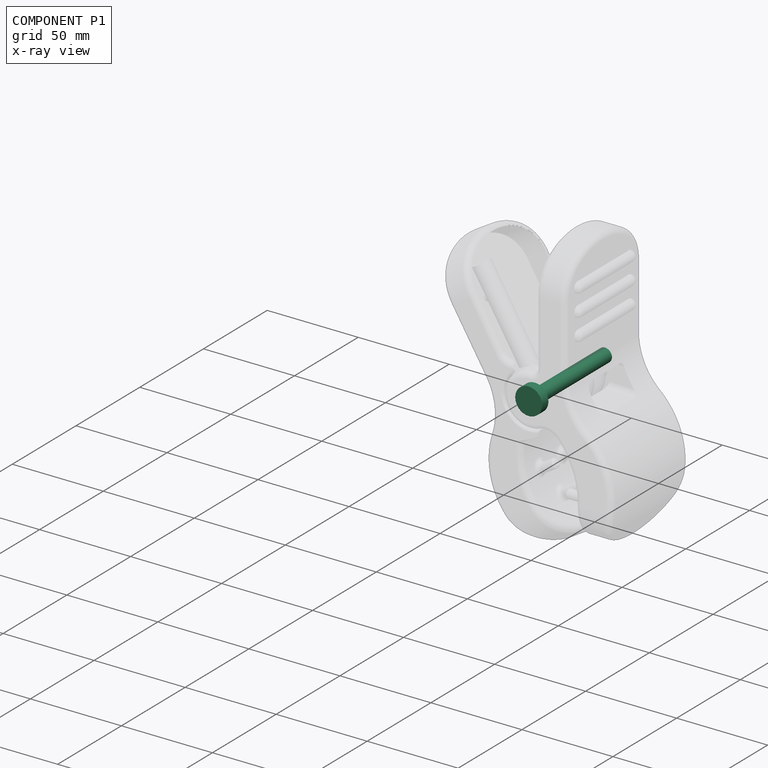
[diagram: component P1 — x-ray view]
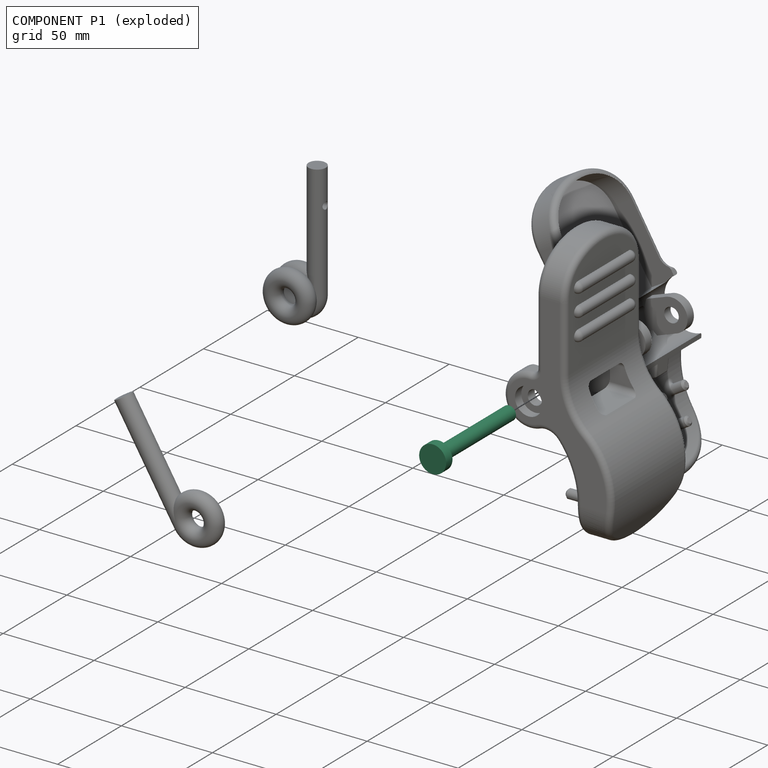
[diagram: component P1 — exploded]
COMPONENT P1 — recipe-attached ("Pin001", modeled in this document).
Held by: FASTENED mate "Joint" to P2.
Construction recipe (the document's own serialized feature program — sketch geometry with constraints, then the solid features built on it; lengths are millimeters unless a unit is written):

FEATURE [PartDesign::SubShapeBinder] Binder001
  BindCopyOnChange = 0
  BindMode = 0
  ClaimChildren = false
  Context = -> Body002 [Binder001.]
  Fuse = false
  MakeFace = true
  OffsetFill = false
  OffsetIntersection = false
  OffsetJoinType = 0
  OffsetOpenResult = false
  PartialLoad = false
  Relative = true
  Support = -> [Body001[Pocket008.Edge75]]
  _Version = 2
FEATURE [Sketcher::SketchObject] Sketch012
  ArcFitTolerance = 1e-06
  AttachmentSupport = -> [Binder001]
  ExternalGeometry = -> [Binder001]
  FullyConstrained = true
  MakeInternals = false
  MapMode = 5
  Placement = pos=(0,8e-16,0) rot=(0,0.707107,0.707107;3.14159rad)
  sketch-geometry (1):
    g0: Circle CenterX=-18.7 CenterY=0.75 CenterZ=0 NormalX=0 NormalY=0 NormalZ=1 AngleXU=0 Radius=7.4
  constraints (2):
    c: Coincident(g0,g-3)
    c: Distance(g0,g-3) = 0.1
FEATURE [PartDesign::SubShapeBinder] Binder002
  BindCopyOnChange = 0
  BindMode = 0
  ClaimChildren = false
  Context = -> Body002 [Binder002.]
  Fuse = false
  MakeFace = true
  OffsetFill = false
  OffsetIntersection = false
  OffsetJoinType = 0
  OffsetOpenResult = false
  PartialLoad = false
  Relative = true
  Support = -> [Body001[Pocket008.Face68]]
  _Version = 2
FEATURE [PartDesign::Pad] Pad007
  Direction = (0,1,-2e-16)
  Length = 10
  Length2 = 10
  Profile = -> Sketch012
  ReferenceAxis = -> Sketch012 [N_Axis]
  Suppressed = false
  Type = 3
  UpToFace = -> Binder002 [Face1]
FEATURE [Sketcher::SketchObject] Sketch013
  ArcFitTolerance = 1e-06
  AttachmentSupport = -> [Pad007]
  ExternalGeometry = -> [Binder002]
  FullyConstrained = true
  MakeInternals = false
  MapMode = 5
  Placement = pos=(0,5,-1.1e-15) rot=(0,0.707107,0.707107;3.14159rad)
  sketch-geometry (1):
    g0: Circle CenterX=-18.7 CenterY=0.75 CenterZ=0 NormalX=0 NormalY=0 NormalZ=1 AngleXU=0 Radius=3.8
  constraints (2):
    c: Coincident(g0,g-3)
    c: Distance(g0,g-3) = 0.2
FEATURE [PartDesign::SubShapeBinder] Binder003
  BindCopyOnChange = 0
  BindMode = 0
  ClaimChildren = false
  Context = -> Body002 [Binder003.]
  Fuse = false
  MakeFace = true
  OffsetFill = false
  OffsetIntersection = false
  OffsetJoinType = 0
  OffsetOpenResult = false
  PartialLoad = false
  Relative = true
  Support = -> [Body001[Pocket008.Edge84]]
  _Version = 2
FEATURE [PartDesign::Pad] Pad008
  BaseFeature = -> Pad007
  Direction = (0,1,-2e-16)
  Length = 10
  Length2 = 10
  Profile = -> Sketch013
  ReferenceAxis = -> Sketch013 [N_Axis]
  Suppressed = false
  Type = 3
  UpToFace = -> Binder003 [Face1]
FEATURE [PartDesign::Body] Body002  label="Pin"
  AllowCompound = false
  Group = -> [Binder001,Sketch012,Binder002,Pad007,Sketch013,Binder003,Pad008]
  Origin = -> Origin002
  Tip = -> Pad008
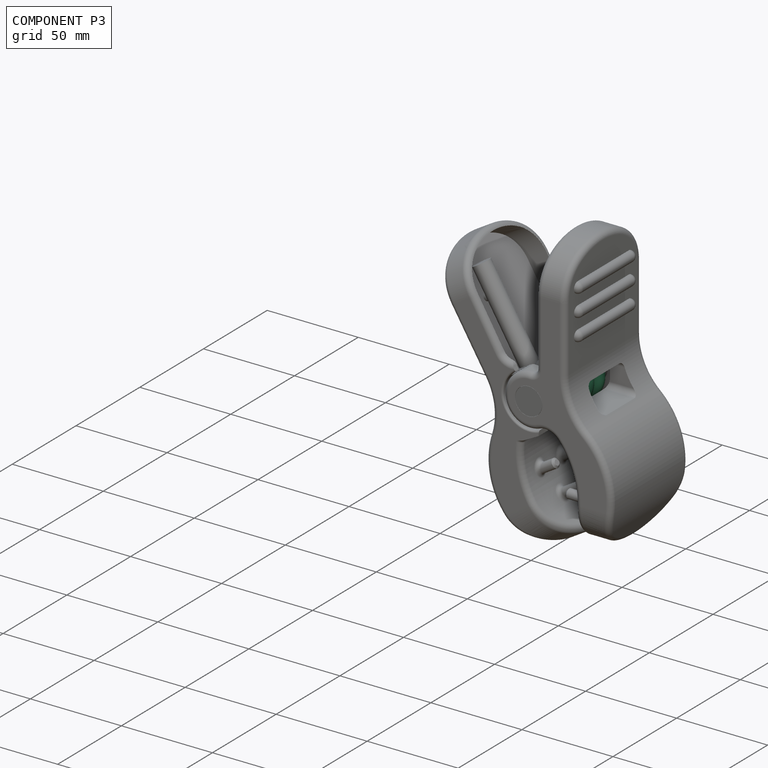
[diagram: component P3 — assembled]
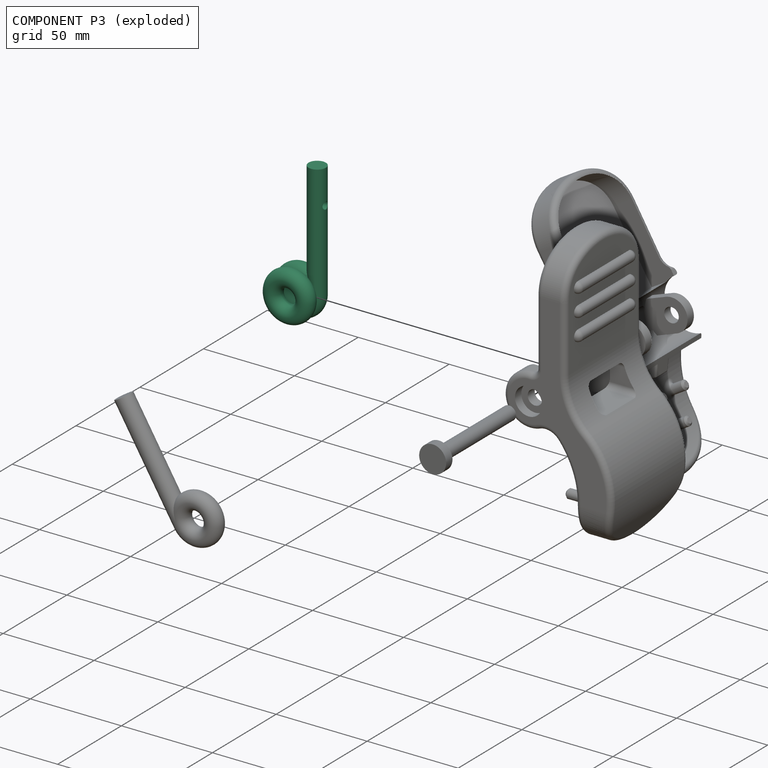
[diagram: component P3 — exploded]
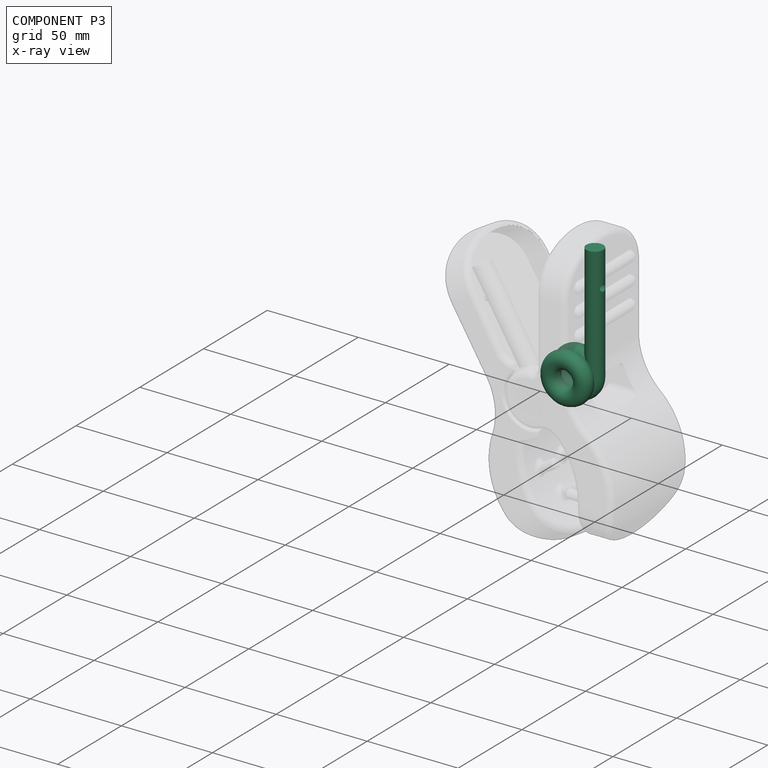
[diagram: component P3 — x-ray view]
COMPONENT P3 — recipe-attached ("Spring 003", modeled in this document).
Held by: FASTENED mate "Joint002" to P2.
Construction recipe (the document's own serialized feature program — sketch geometry with constraints, then the solid features built on it; lengths are millimeters unless a unit is written):

FEATURE [PartDesign::AdditiveTorus] Torus
  Angle1 = -180
  Angle2 = 180
  Angle3 = 360
  AttacherType = Attacher::AttachEngine3D
  AttachmentSupport = -> [XZ_Plane004]
  MapMode = 2
  Placement = pos=(0,0,0) rot=(1,0,0;1.5708rad)
  Radius1 = 9
  Radius2 = 4.75
  Refine = true
  Suppressed = false
FEATURE [PartDesign::LinearPattern] LinearPattern
  BaseFeature = -> Torus
  Direction = -> Y_Axis004
  Length = 8.75
  Mode = 0
  Occurrences = 2
  Offset = 8.75
  Originals = -> [Torus]
  Placement = pos=(0,0,0) rot=(1,0,0;1.5708rad)
  Reversed = true
  Suppressed = false
  TransformMode = 0
FEATURE [PartDesign::AdditiveCylinder] Cylinder
  Angle = 360
  AttacherType = Attacher::AttachEngine3D
  AttachmentOffset = pos=(9,0,-64) rot=(0,1,0;0rad)
  AttachmentSupport = -> [XZ_Plane004]
  BaseFeature = -> LinearPattern
  FirstAngle = 0
  Height = 64
  MapMode = 3
  Placement = pos=(9,0,64) rot=(1,0,0;3.14159rad)
  Radius = 4.75
  SecondAngle = 0
  Suppressed = false
FEATURE [PartDesign::SubShapeBinder] Binder004
  BindCopyOnChange = 0
  BindMode = 0
  ClaimChildren = false
  Context = -> Body003 [Binder004.]
  Fuse = false
  MakeFace = true
  OffsetFill = false
  OffsetIntersection = false
  OffsetJoinType = 0
  OffsetOpenResult = false
  PartialLoad = false
  Relative = true
  Support = -> [Body001[Sketch017.]]
  _Version = 2
FEATURE [PartDesign::Pocket] Pocket010
  BaseFeature = -> Cylinder
  Direction = (-1,0,0)
  Length = 6
  Length2 = 5
  Placement = pos=(9,0,64) rot=(1,0,0;3.14159rad)
  Profile = -> Binder004
  Suppressed = false
  Type = 0
FEATURE [PartDesign::Body] Body003  label="Spring 1"
  AllowCompound = false
  Group = -> [Torus,LinearPattern,Cylinder,Binder004,Pocket010]
  Origin = -> Origin004
  Placement = pos=(18.75,39,0.75) rot=(0,0,1;0rad)
  Tip = -> Pocket010
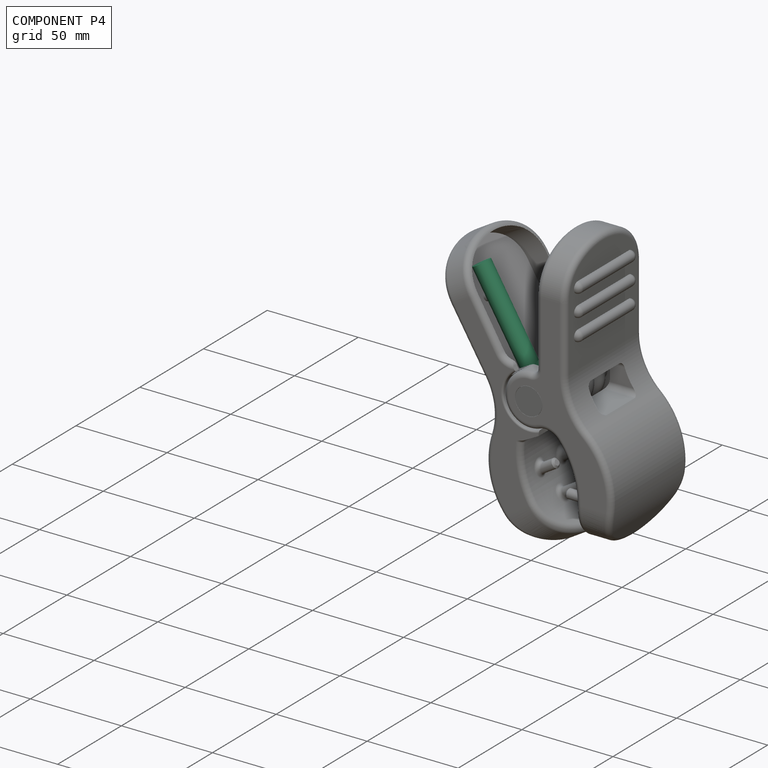
[diagram: component P4 — assembled]
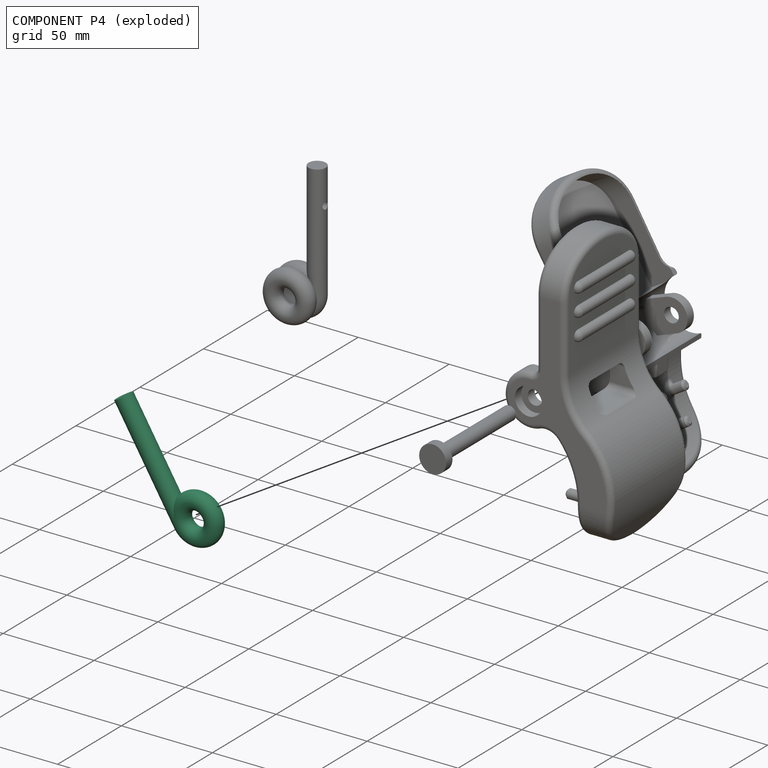
[diagram: component P4 — exploded]
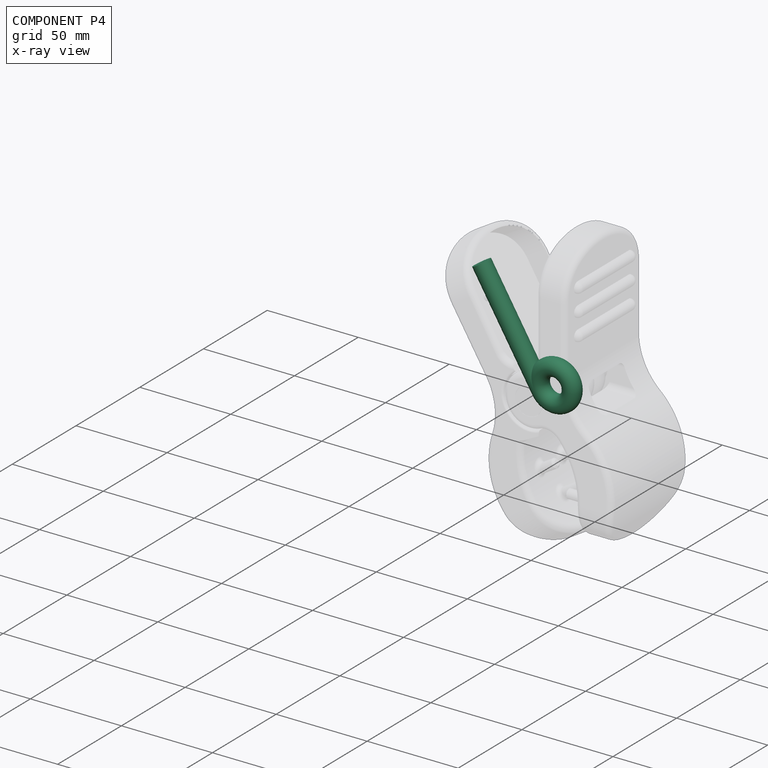
[diagram: component P4 — x-ray view]
COMPONENT P4 — recipe-attached ("Spring 004", modeled in this document).
Held by: FASTENED mate "Joint004" to P0.
Construction recipe (the document's own serialized feature program — sketch geometry with constraints, then the solid features built on it; lengths are millimeters unless a unit is written):

FEATURE [PartDesign::SubShapeBinder] Binder005
  BindCopyOnChange = 0
  BindMode = 0
  ClaimChildren = false
  Context = -> Body004 [Binder005.]
  Fuse = false
  MakeFace = true
  OffsetFill = false
  OffsetIntersection = false
  OffsetJoinType = 0
  OffsetOpenResult = false
  PartialLoad = false
  Relative = true
  Support = -> [Body[Sketch019.]]
  _Version = 2
FEATURE [PartDesign::AdditiveTorus] Torus001
  Angle1 = -180
  Angle2 = 180
  Angle3 = 360
  AttacherType = Attacher::AttachEngine3D
  AttachmentOffset = pos=(0,0,0) rot=(0,0,1;3.14159rad)
  AttachmentSupport = -> [XY_Plane005]
  MapMode = 2
  Placement = pos=(0,0,0) rot=(0,0,1;3.14159rad)
  Radius1 = 9
  Radius2 = 4.75
  Refine = true
  Suppressed = false
FEATURE [PartDesign::AdditiveCylinder] Cylinder001
  Angle = 360
  AttacherType = Attacher::AttachEngine3D
  AttachmentOffset = pos=(9,0,0) rot=(0,0,1;0rad)
  AttachmentSupport = -> [XZ_Plane005]
  BaseFeature = -> Torus001
  FirstAngle = 0
  Height = 64
  MapMode = 2
  Placement = pos=(-9,0,0) rot=(0,0.707107,0.707107;3.14159rad)
  Radius = 4.75
  SecondAngle = 0
  Suppressed = false
FEATURE [PartDesign::SubShapeBinder] Binder006
  BindCopyOnChange = 0
  BindMode = 0
  ClaimChildren = false
  Context = -> Body004 [Binder006.]
  Fuse = false
  MakeFace = true
  OffsetFill = false
  OffsetIntersection = false
  OffsetJoinType = 0
  OffsetOpenResult = false
  PartialLoad = false
  Relative = true
  Support = -> [Body[Sketch019.]]
  _Version = 2
FEATURE [PartDesign::Pocket] Pocket012
  BaseFeature = -> Cylinder001
  Direction = (-1,0,0)
  Length = 6
  Length2 = 5
  Placement = pos=(-9,0,0) rot=(0,0.707107,0.707107;3.14159rad)
  Profile = -> Binder006
  Reversed = true
  Suppressed = false
  Type = 0
FEATURE [PartDesign::Body] Body004  label="Spring 2"
  AllowCompound = false
  Group = -> [Binder005,Torus001,Cylinder001,Binder006,Pocket012]
  Origin = -> Origin005
  Placement = pos=(-18.75,20.75,0.5) rot=(1,0,0;1.5708rad)
  Tip = -> Pocket012
PROVENANCE & LICENSES
Assembly and component geometry: a FreeCAD (.FCStd) document from a public repository crawl; components, placements and joints were extracted with FreeCAD and each solid tessellated.
Construction recipes: the document's own serialized feature recipes (and, for linked parts, the recipes of companion documents from the same project).
License: other.
Joints: native FreeCAD joints and A2plus constraints are mapped to standard mate types.
Verification: 5 of this assembly's 5 components carry a construction recipe (5 from this document itself); the rest are geometry-only. Every component's tessellation passed the extraction mesh gates (mesh-volume checksum against the B-rep where available, bounding-box inflation <= 2%).
Renders: orthographic iso camera (az 35 / el 25); the floor grid conveys scale (grid pitch printed in each image; no ruler). In the exploded view each component is displaced by its stored offset vector: the offsets alone carry the explosion direction (mate normal/axis signs are not orientation cues and do not encode it), and separation distances are assigned per mate-chain, not proportionally to assembly-order depth.
